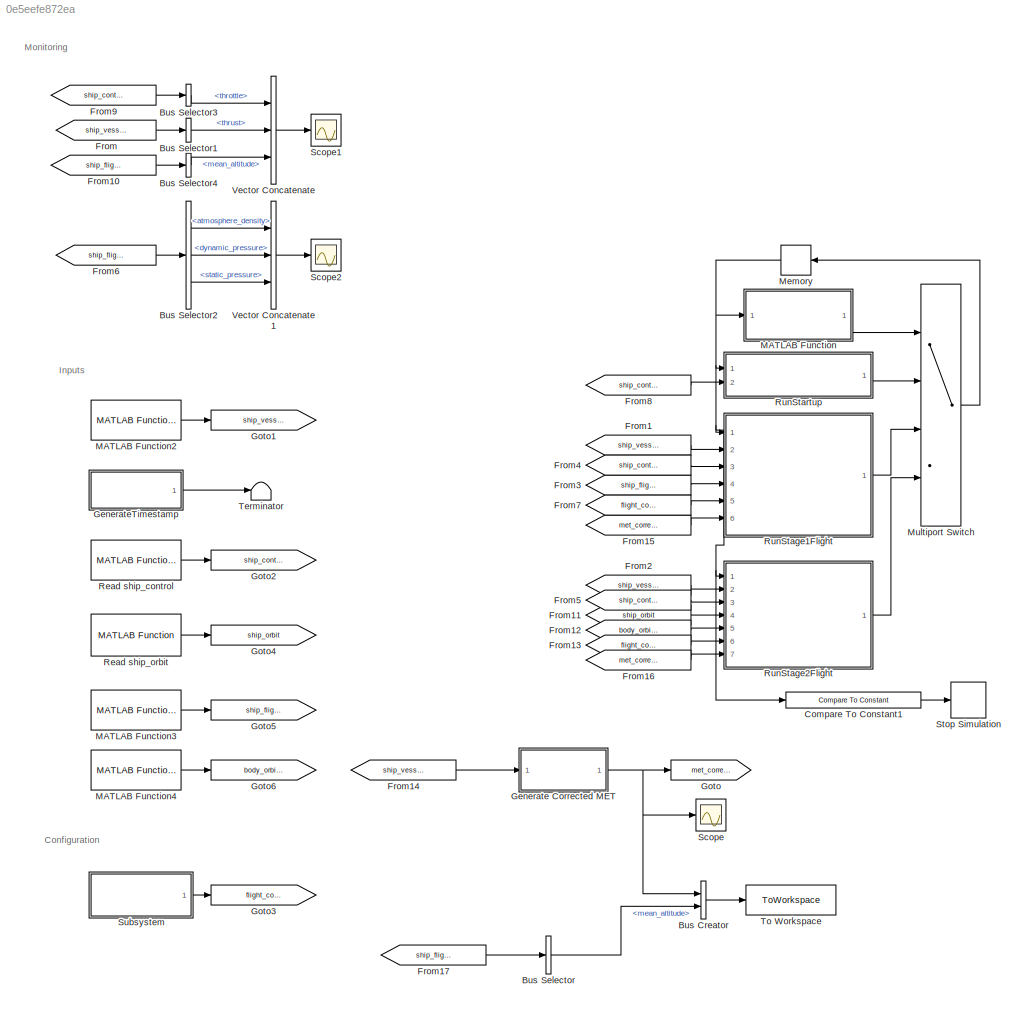
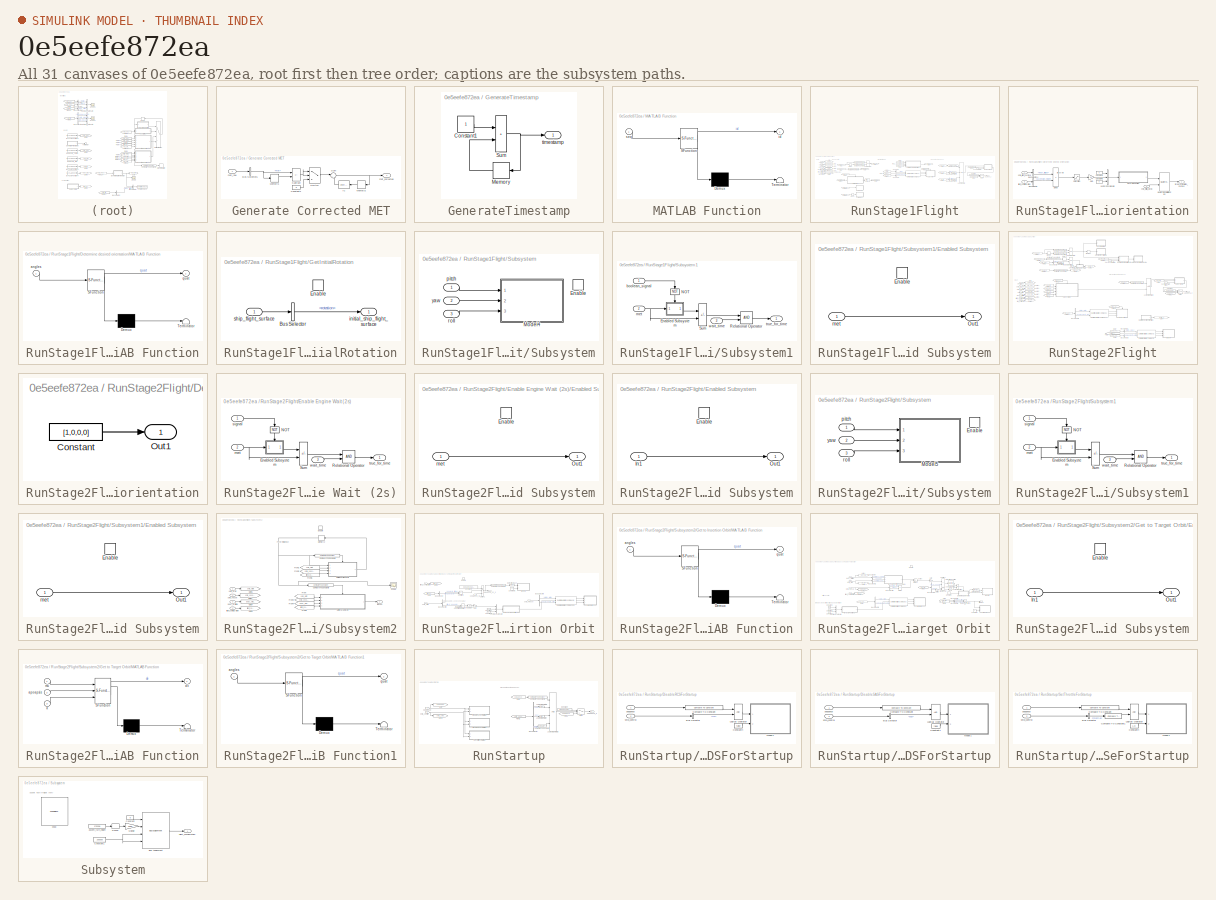
[diagram: thumbnail index - all 31 canvases of the model, root first then tree order]
MODEL slx_0e5eefe872ea
KIND model
CONFIG AbsTol = auto
CONFIG EnableMultiTasking = off
CONFIG FixedStep = 1/TPS
CONFIG MaxStep = auto
CONFIG MinStep = auto
CONFIG RelTol = 1e-3
CONFIG SampleTimeConstraint = Unconstrained
CONFIG SolverName = FixedStepDiscrete
CONFIG StartTime = 0.0
CONFIG StopTime = 10.0
WORKSPACE source: mxarray member
WORKSPACE socvcb: containers.Map (value not decoded)
BLOCK [BusCreator] Bus Creator
  DisplayOption = bar
  InheritFromInputs = on
  Inputs = 2
  Ports = [2, 1]
BLOCK [BusSelector] Bus Selector
  OutputSignals = mean_altitude
  Ports = [1, 1]
BLOCK [BusSelector] Bus Selector1
  OutputSignals = thrust
  Ports = [1, 1]
BLOCK [BusSelector] Bus Selector2
  OutputSignals = atmosphere_density,dynamic_pressure,static_pressure
  Ports = [1, 3]
BLOCK [BusSelector] Bus Selector3
  OutputSignals = throttle
  Ports = [1, 1]
BLOCK [BusSelector] Bus Selector4
  OutputSignals = mean_altitude
  Ports = [1, 1]
BLOCK [Reference] Compare To Constant1  REF=simulink/Logic and Bit
Operations/Compare
To Constant
  Ports = [1, 1]
  SourceBlock = simulink/Logic and Bit\nOperations/Compare\nTo Constant
  SourceProductBaseCode = SL
  SourceType = Compare To Constant
BLOCK [From] From
  GotoTag = ship_vessel
BLOCK [From] From1
  GotoTag = ship_vessel
BLOCK [From] From10
  GotoTag = ship_flight_surface
BLOCK [From] From11
  GotoTag = ship_orbit
BLOCK [From] From12
  GotoTag = body_orbiting
BLOCK [From] From13
  GotoTag = flight_configuration
BLOCK [From] From14
  GotoTag = ship_vessel
BLOCK [From] From15
  GotoTag = met_corrected
BLOCK [From] From16
  GotoTag = met_corrected
BLOCK [From] From17
  GotoTag = ship_flight_surface
BLOCK [From] From2
  GotoTag = ship_vessel
BLOCK [From] From3
  GotoTag = ship_flight_surface
BLOCK [From] From4
  GotoTag = ship_control
BLOCK [From] From5
  GotoTag = ship_control
BLOCK [From] From6
  GotoTag = ship_flight_surface
BLOCK [From] From7
  GotoTag = flight_configuration
BLOCK [From] From8
  GotoTag = ship_control
BLOCK [From] From9
  GotoTag = ship_control
BLOCK [SubSystem] Generate Corrected MET
  Ports = [1, 1]
  RequestExecContextInheritance = off
BLOCK [BusSelector] Generate Corrected MET/Bus Selector5
  OutputSignals = met
  Ports = [1, 1]
BLOCK [Constant] Generate Corrected MET/Constant1
  Value = 0
BLOCK [InitialCondition] Generate Corrected MET/IC
  NameLocation = top
  Value = 0
BLOCK [Memory] Generate Corrected MET/Memory1
BLOCK [Memory] Generate Corrected MET/Memory2
  NameLocation = top
BLOCK [Sum] Generate Corrected MET/Subtract
  IconShape = rectangular
  Inputs = +-
  Ports = [2, 1]
BLOCK [Sum] Generate Corrected MET/Sum
  Inputs = |++
  Ports = [2, 1]
BLOCK [Switch] Generate Corrected MET/Switch
  Criteria = u2 > Threshold
  InputSameDT = off
  SaturateOnIntegerOverflow = off
BLOCK [Outport] Generate Corrected MET/met_corrected
BLOCK [Inport] Generate Corrected MET/met_raw
BLOCK [SubSystem] GenerateTimestamp
  Ports = [0, 1]
  RequestExecContextInheritance = off
BLOCK [Constant] GenerateTimestamp/Constant1
BLOCK [Memory] GenerateTimestamp/Memory
  NameLocation = top
BLOCK [Sum] GenerateTimestamp/Sum
  IconShape = rectangular
  Ports = [2, 1]
BLOCK [Outport] GenerateTimestamp/timestamp
BLOCK [Goto] Goto
  GotoTag = met_corrected
BLOCK [Goto] Goto1
  GotoTag = ship_vessel
BLOCK [Goto] Goto2
  GotoTag = ship_control
BLOCK [Goto] Goto3
  GotoTag = flight_configuration
BLOCK [Goto] Goto4
  GotoTag = ship_orbit
BLOCK [Goto] Goto5
  GotoTag = ship_flight_surface
BLOCK [Goto] Goto6
  GotoTag = body_orbiting
BLOCK [SubSystem] MATLAB Function
  ErrorFcn = Stateflow.Translate.translate
  PermitHierarchicalResolution = ExplicitOnly
  Ports = [1, 1]
  RequestExecContextInheritance = off
  SFBlockType = MATLAB Function
  TreatAsAtomicUnit = on
BLOCK [Demux] MATLAB Function/ Demux 
  Outputs = 1
  Ports = [1, 1]
BLOCK [S-Function] MATLAB Function/ SFunction 
  EnableBusSupport = on
  FunctionName = sf_sfun
  PortCounts = [1 2]
  Ports = [1, 2]
  SFcnIsStateOwnerBlock = off
  SFunctionDeploymentMode = off
  Tag = Stateflow S-Function 2
BLOCK [Terminator] MATLAB Function/ Terminator 
BLOCK [Outport] MATLAB Function/id
BLOCK [Inport] MATLAB Function/seq
BLOCK [Reference] MATLAB Function2  REF=readers/MATLAB Function2  (lib defined in slx_15a7cccf68af)
  Ports = [0, 1]
  SourceBlock = readers/MATLAB Function2
  SourceType = SubSystem
BLOCK [Reference] MATLAB Function3  REF=readers/MATLAB Function3  (lib defined in slx_15a7cccf68af)
  Ports = [0, 1]
  SourceBlock = readers/MATLAB Function3
  SourceType = SubSystem
BLOCK [Reference] MATLAB Function4  REF=readers/MATLAB Function4  (lib defined in slx_15a7cccf68af)
  Ports = [0, 1]
  SourceBlock = readers/MATLAB Function4
  SourceType = SubSystem
BLOCK [Memory] Memory
  InitialCondition = Sequence.STARTUP
  NameLocation = top
BLOCK [MultiPortSwitch] Multiport Switch
  InputSameDT = off
  Ports = [4, 1]
  SaturateOnIntegerOverflow = off
BLOCK [Reference] Read ship_control  REF=readers/MATLAB Function1  (lib defined in slx_15a7cccf68af)
  Ports = [0, 1]
  SourceBlock = readers/MATLAB Function1
  SourceType = SubSystem
BLOCK [Reference] Read ship_orbit  REF=readers/MATLAB Function  (lib defined in slx_15a7cccf68af)
  Ports = [0, 1]
  SourceBlock = readers/MATLAB Function
  SourceType = SubSystem
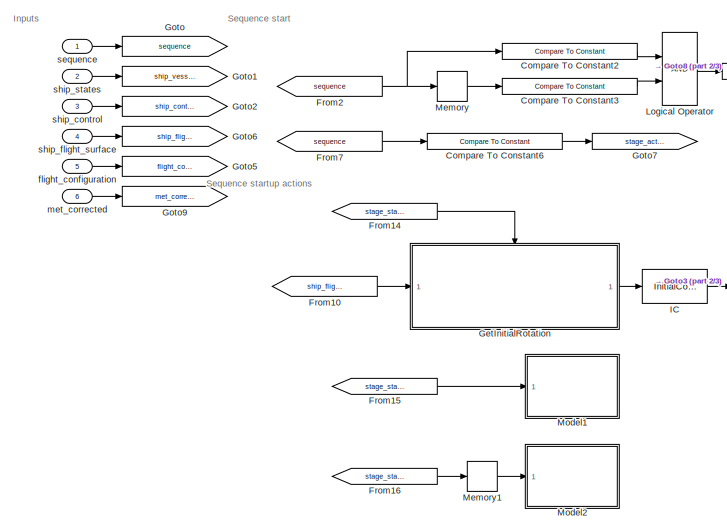
[diagram: RunStage1Flight - part 1/3, left side, full height]
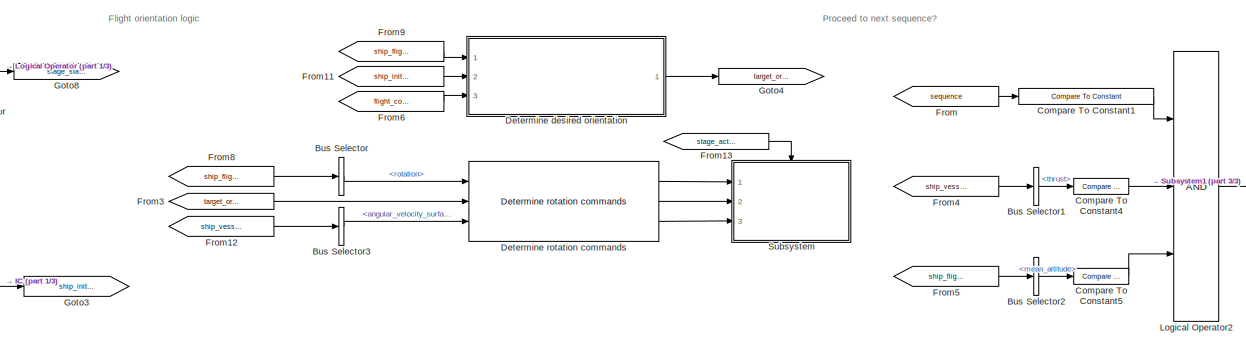
[diagram: RunStage1Flight - part 2/3, central region]
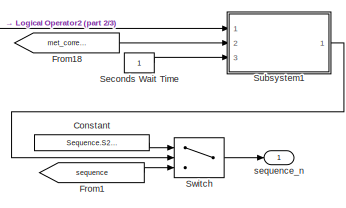
[diagram: RunStage1Flight - part 3/3, middle right region]
BLOCK [SubSystem] RunStage1Flight
  Ports = [6, 1]
  RequestExecContextInheritance = off
BLOCK [BusSelector] RunStage1Flight/Bus Selector
  OutputSignals = rotation
  Ports = [1, 1]
BLOCK [BusSelector] RunStage1Flight/Bus Selector1
  OutputSignals = thrust
  Ports = [1, 1]
BLOCK [BusSelector] RunStage1Flight/Bus Selector2
  OutputSignals = mean_altitude
  Ports = [1, 1]
BLOCK [BusSelector] RunStage1Flight/Bus Selector3
  OutputSignals = angular_velocity_surface
  Ports = [1, 1]
BLOCK [Reference] RunStage1Flight/Compare To Constant1  REF=simulink/Logic and Bit
Operations/Compare
To Constant
  Ports = [1, 1]
  SourceBlock = simulink/Logic and Bit\nOperations/Compare\nTo Constant
  SourceProductBaseCode = SL
  SourceType = Compare To Constant
BLOCK [Reference] RunStage1Flight/Compare To Constant2  REF=simulink/Logic and Bit
Operations/Compare
To Constant
  Ports = [1, 1]
  SourceBlock = simulink/Logic and Bit\nOperations/Compare\nTo Constant
  SourceProductBaseCode = SL
  SourceType = Compare To Constant
BLOCK [Reference] RunStage1Flight/Compare To Constant3  REF=simulink/Logic and Bit
Operations/Compare
To Constant
  Ports = [1, 1]
  SourceBlock = simulink/Logic and Bit\nOperations/Compare\nTo Constant
  SourceProductBaseCode = SL
  SourceType = Compare To Constant
BLOCK [Reference] RunStage1Flight/Compare To Constant4  REF=simulink/Logic and Bit
Operations/Compare
To Constant
  Ports = [1, 1]
  SourceBlock = simulink/Logic and Bit\nOperations/Compare\nTo Constant
  SourceProductBaseCode = SL
  SourceType = Compare To Constant
BLOCK [Reference] RunStage1Flight/Compare To Constant5  REF=simulink/Logic and Bit
Operations/Compare
To Constant
  Ports = [1, 1]
  SourceBlock = simulink/Logic and Bit\nOperations/Compare\nTo Constant
  SourceProductBaseCode = SL
  SourceType = Compare To Constant
BLOCK [Reference] RunStage1Flight/Compare To Constant6  REF=simulink/Logic and Bit
Operations/Compare
To Constant
  Ports = [1, 1]
  SourceBlock = simulink/Logic and Bit\nOperations/Compare\nTo Constant
  SourceProductBaseCode = SL
  SourceType = Compare To Constant
BLOCK [Constant] RunStage1Flight/Constant
  Value = Sequence.S2FLIGHT
BLOCK [SubSystem] RunStage1Flight/Determine desired orientation
  Ports = [3, 1]
  RequestExecContextInheritance = off
BLOCK [BusSelector] RunStage1Flight/Determine desired orientation/Bus Selector
  OutputSignals = ascent_turn_height
  Ports = [1, 1]
BLOCK [BusSelector] RunStage1Flight/Determine desired orientation/Bus Selector4
  OutputSignals = mean_altitude
  Ports = [1, 1]
BLOCK [Constant] RunStage1Flight/Determine desired orientation/Constant4
  Value = 0
BLOCK [Constant] RunStage1Flight/Determine desired orientation/Constant5
  Value = 0
BLOCK [Product] RunStage1Flight/Determine desired orientation/Divide
  Inputs = */
  Ports = [2, 1]
BLOCK [Gain] RunStage1Flight/Determine desired orientation/Gain
  Gain = 90
BLOCK [SubSystem] RunStage1Flight/Determine desired orientation/MATLAB Function
  ErrorFcn = Stateflow.Translate.translate
  PermitHierarchicalResolution = ExplicitOnly
  Ports = [1, 1]
  RequestExecContextInheritance = off
  SFBlockType = MATLAB Function
  TreatAsAtomicUnit = on
BLOCK [Demux] RunStage1Flight/Determine desired orientation/MATLAB Function/ Demux 
  Outputs = 1
  Ports = [1, 1]
BLOCK [S-Function] RunStage1Flight/Determine desired orientation/MATLAB Function/ SFunction 
  EnableBusSupport = on
  FunctionName = sf_sfun
  PortCounts = [1 2]
  Ports = [1, 2]
  SFcnIsStateOwnerBlock = off
  SFunctionDeploymentMode = off
  Tag = Stateflow S-Function 6
BLOCK [Terminator] RunStage1Flight/Determine desired orientation/MATLAB Function/ Terminator 
BLOCK [Inport] RunStage1Flight/Determine desired orientation/MATLAB Function/angles
BLOCK [Outport] RunStage1Flight/Determine desired orientation/MATLAB Function/quat
BLOCK [Reference] RunStage1Flight/Determine desired orientation/Quaternion Multiplication  REF=aerolibutil/Quaternion
Multiplication
  Ports = [2, 1]
  SourceBlock = aerolibutil/Quaternion\nMultiplication
  SourceProductBaseCode = AE
  SourceType = Quaternion Multiplication
BLOCK [Saturate] RunStage1Flight/Determine desired orientation/Saturation
  LowerLimit = 0
  UpperLimit = 1
BLOCK [Concatenate] RunStage1Flight/Determine desired orientation/Vector Concatenate
  NumInputs = 3
  Ports = [3, 1]
BLOCK [Inport] RunStage1Flight/Determine desired orientation/flight_configuration
  OutDataTypeStr = Bus: FlightConfig
  Port = 3
BLOCK [Inport] RunStage1Flight/Determine desired orientation/ship_flight_surface
  OutDataTypeStr = Bus: ShipFlight
BLOCK [Inport] RunStage1Flight/Determine desired orientation/ship_initial_world
  Port = 2
BLOCK [Outport] RunStage1Flight/Determine desired orientation/target_orientation_surface
BLOCK [Reference] RunStage1Flight/Determine rotation commands  REF=determine_rotation_commands/Determine rotation commands  (lib defined in slx_df92a99b83ff)
  Ports = [3, 3]
  SourceBlock = determine_rotation_commands/Determine rotation commands
BLOCK [From] RunStage1Flight/From
  GotoTag = sequence
BLOCK [From] RunStage1Flight/From1
  GotoTag = sequence
BLOCK [From] RunStage1Flight/From10
  GotoTag = ship_flight_surface
BLOCK [From] RunStage1Flight/From11
  GotoTag = ship_initial_world
BLOCK [From] RunStage1Flight/From12
  GotoTag = ship_vessel
BLOCK [From] RunStage1Flight/From13
  GotoTag = stage_active
BLOCK [From] RunStage1Flight/From14
  GotoTag = stage_start_trigger
BLOCK [From] RunStage1Flight/From15
  GotoTag = stage_start_trigger
BLOCK [From] RunStage1Flight/From16
  GotoTag = stage_start_trigger
BLOCK [From] RunStage1Flight/From18
  GotoTag = met_corrected
BLOCK [From] RunStage1Flight/From2
  GotoTag = sequence
BLOCK [From] RunStage1Flight/From3
  GotoTag = target_orientation
BLOCK [From] RunStage1Flight/From4
  GotoTag = ship_vessel
BLOCK [From] RunStage1Flight/From5
  GotoTag = ship_flight_surface
BLOCK [From] RunStage1Flight/From6
  GotoTag = flight_configuration
BLOCK [From] RunStage1Flight/From7
  GotoTag = sequence
BLOCK [From] RunStage1Flight/From8
  GotoTag = ship_flight_surface
BLOCK [From] RunStage1Flight/From9
  GotoTag = ship_flight_surface
BLOCK [SubSystem] RunStage1Flight/GetInitialRotation
  Ports = [1, 1, 1]
  RequestExecContextInheritance = off
BLOCK [BusSelector] RunStage1Flight/GetInitialRotation/Bus Selector
  OutputSignals = rotation
  Ports = [1, 1]
BLOCK [EnablePort] RunStage1Flight/GetInitialRotation/Enable
  Ports = []
BLOCK [Outport] RunStage1Flight/GetInitialRotation/initial_ship_flight_surface
BLOCK [Inport] RunStage1Flight/GetInitialRotation/ship_flight_surface
  OutDataTypeStr = Bus: ShipFlight
BLOCK [Goto] RunStage1Flight/Goto
  GotoTag = sequence
BLOCK [Goto] RunStage1Flight/Goto1
  GotoTag = ship_vessel
BLOCK [Goto] RunStage1Flight/Goto2
  GotoTag = ship_control
BLOCK [Goto] RunStage1Flight/Goto3
  GotoTag = ship_initial_world
BLOCK [Goto] RunStage1Flight/Goto4
  GotoTag = target_orientation
BLOCK [Goto] RunStage1Flight/Goto5
  GotoTag = flight_configuration
BLOCK [Goto] RunStage1Flight/Goto6
  GotoTag = ship_flight_surface
BLOCK [Goto] RunStage1Flight/Goto7
  GotoTag = stage_active
BLOCK [Goto] RunStage1Flight/Goto8
  GotoTag = stage_start_trigger
BLOCK [Goto] RunStage1Flight/Goto9
  GotoTag = met_corrected
BLOCK [InitialCondition] RunStage1Flight/IC
  Value = [1,0,0,0]
BLOCK [Logic] RunStage1Flight/Logical Operator
  AllPortsSameDT = off
  OutDataTypeStr = boolean
  Ports = [2, 1]
BLOCK [Logic] RunStage1Flight/Logical Operator2
  AllPortsSameDT = off
  Inputs = 3
  OutDataTypeStr = boolean
  Ports = [3, 1]
BLOCK [Memory] RunStage1Flight/Memory
  InitialCondition = Sequence.STARTUP
BLOCK [Memory] RunStage1Flight/Memory1
  InitialCondition = false
BLOCK [ModelReference] RunStage1Flight/Model1
  ModelNameDialog = stage.slx
  ModelReferenceVersion = 1.23
  Ports = [1]
BLOCK [ModelReference] RunStage1Flight/Model2
  ModelNameDialog = stage.slx
  ModelReferenceVersion = 1.23
  Ports = [1]
BLOCK [Constant] RunStage1Flight/Seconds Wait Time
BLOCK [SubSystem] RunStage1Flight/Subsystem
  Ports = [3, 0, 1]
  RequestExecContextInheritance = off
BLOCK [EnablePort] RunStage1Flight/Subsystem/Enable
  Ports = []
BLOCK [ModelReference] RunStage1Flight/Subsystem/Model4
  ModelNameDialog = write_control.slx
  ModelReferenceVersion = 1.104
  Ports = [3]
BLOCK [Inport] RunStage1Flight/Subsystem/pitch
BLOCK [Inport] RunStage1Flight/Subsystem/roll
  Port = 3
BLOCK [Inport] RunStage1Flight/Subsystem/yaw
  Port = 2
BLOCK [SubSystem] RunStage1Flight/Subsystem1
  Ports = [3, 1]
  RequestExecContextInheritance = off
BLOCK [SubSystem] RunStage1Flight/Subsystem1/Enabled Subsystem
  Ports = [1, 1, 1]
  RequestExecContextInheritance = off
  TreatAsAtomicUnit = on
BLOCK [EnablePort] RunStage1Flight/Subsystem1/Enabled Subsystem/Enable
  Ports = []
BLOCK [Outport] RunStage1Flight/Subsystem1/Enabled Subsystem/Out1
BLOCK [Inport] RunStage1Flight/Subsystem1/Enabled Subsystem/met
BLOCK [Logic] RunStage1Flight/Subsystem1/NOT
  AllPortsSameDT = off
  NameLocation = left
  Operator = NOT
  OutDataTypeStr = boolean
  Ports = [1, 1]
BLOCK [RelationalOperator] RunStage1Flight/Subsystem1/Relational Operator
  InputSameDT = off
  OutDataTypeStr = boolean
  Ports = [2, 1]
  RndMeth = Simplest
BLOCK [Sum] RunStage1Flight/Subsystem1/Sum
  IconShape = rectangular
  Inputs = -+
  Ports = [2, 1]
BLOCK [Inport] RunStage1Flight/Subsystem1/boolean_signal
  OutDataTypeStr = boolean
BLOCK [Inport] RunStage1Flight/Subsystem1/met
  OutDataTypeStr = double
  Port = 2
BLOCK [Outport] RunStage1Flight/Subsystem1/true_for_time
BLOCK [Inport] RunStage1Flight/Subsystem1/wait_time
  OutDataTypeStr = double
  Port = 3
BLOCK [Switch] RunStage1Flight/Switch
  Criteria = u2 > Threshold
  InputSameDT = off
  SaturateOnIntegerOverflow = off
BLOCK [Inport] RunStage1Flight/flight_configuration
  OutDataTypeStr = Bus: FlightConfig
  Port = 5
BLOCK [Inport] RunStage1Flight/met_corrected
  Port = 6
BLOCK [Inport] RunStage1Flight/sequence
  OutDataTypeStr = Enum: Sequence
BLOCK [Outport] RunStage1Flight/sequence_n
  OutDataTypeStr = Enum: Sequence
BLOCK [Inport] RunStage1Flight/ship_control
  OutDataTypeStr = Bus: ShipControl
  Port = 3
BLOCK [Inport] RunStage1Flight/ship_flight_surface
  OutDataTypeStr = Bus: ShipFlight
  Port = 4
BLOCK [Inport] RunStage1Flight/ship_states
  OutDataTypeStr = Bus: ShipVessel
  Port = 2
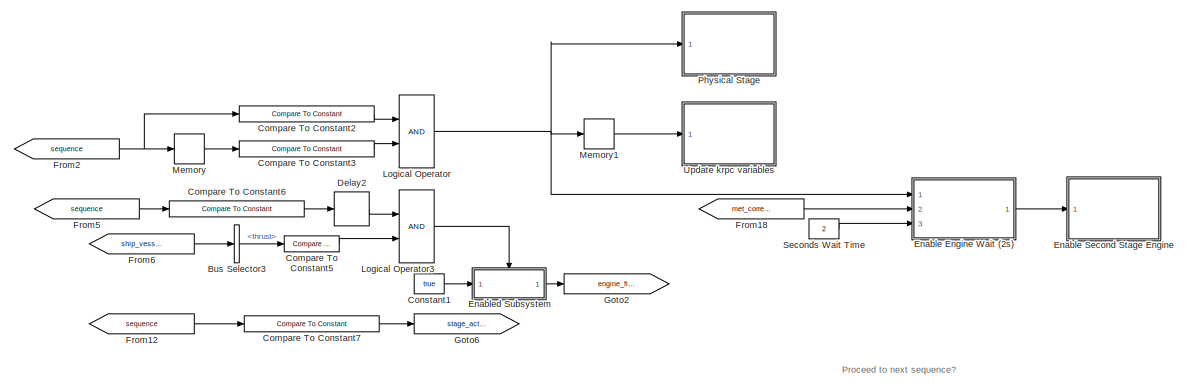
[diagram: RunStage2Flight - part 1/3, top center region]
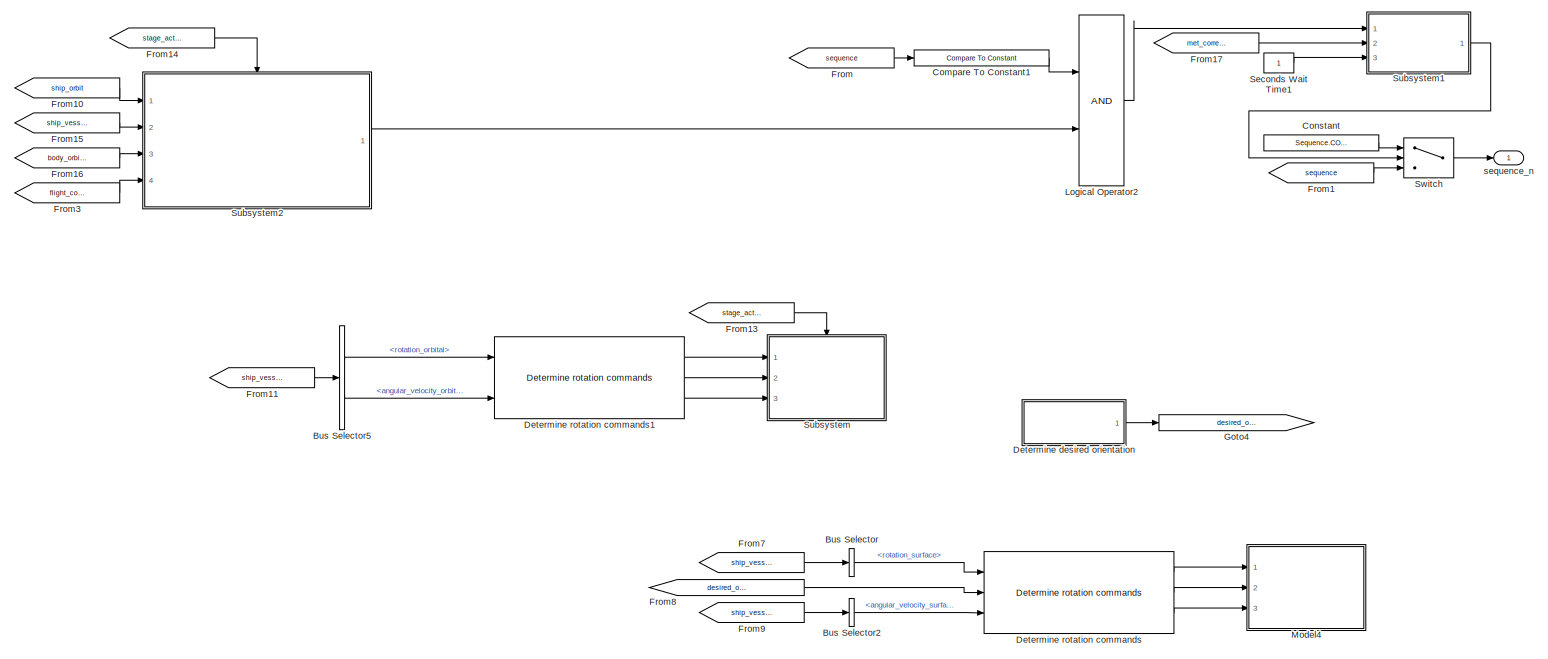
[diagram: RunStage2Flight - part 2/3, full width, bottom band]
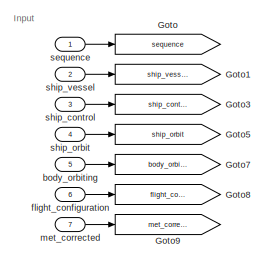
[diagram: RunStage2Flight - part 3/3, middle left region]
BLOCK [SubSystem] RunStage2Flight
  Ports = [7, 1]
  RequestExecContextInheritance = off
BLOCK [BusSelector] RunStage2Flight/Bus Selector
  Commented = on
  OutputSignals = rotation_surface
  Ports = [1, 1]
BLOCK [BusSelector] RunStage2Flight/Bus Selector2
  Commented = on
  OutputSignals = angular_velocity_surface
  Ports = [1, 1]
BLOCK [BusSelector] RunStage2Flight/Bus Selector3
  OutputSignals = thrust
  Ports = [1, 1]
BLOCK [BusSelector] RunStage2Flight/Bus Selector5
  Commented = on
  OutputSignals = rotation_orbital,angular_velocity_orbital
  Ports = [1, 2]
BLOCK [Reference] RunStage2Flight/Compare To Constant1  REF=simulink/Logic and Bit
Operations/Compare
To Constant
  Ports = [1, 1]
  SourceBlock = simulink/Logic and Bit\nOperations/Compare\nTo Constant
  SourceProductBaseCode = SL
  SourceType = Compare To Constant
BLOCK [Reference] RunStage2Flight/Compare To Constant2  REF=simulink/Logic and Bit
Operations/Compare
To Constant
  Ports = [1, 1]
  SourceBlock = simulink/Logic and Bit\nOperations/Compare\nTo Constant
  SourceProductBaseCode = SL
  SourceType = Compare To Constant
BLOCK [Reference] RunStage2Flight/Compare To Constant3  REF=simulink/Logic and Bit
Operations/Compare
To Constant
  Ports = [1, 1]
  SourceBlock = simulink/Logic and Bit\nOperations/Compare\nTo Constant
  SourceProductBaseCode = SL
  SourceType = Compare To Constant
BLOCK [Reference] RunStage2Flight/Compare To Constant5  REF=simulink/Logic and Bit
Operations/Compare
To Constant
  Ports = [1, 1]
  SourceBlock = simulink/Logic and Bit\nOperations/Compare\nTo Constant
  SourceProductBaseCode = SL
  SourceType = Compare To Constant
BLOCK [Reference] RunStage2Flight/Compare To Constant6  REF=simulink/Logic and Bit
Operations/Compare
To Constant
  Ports = [1, 1]
  SourceBlock = simulink/Logic and Bit\nOperations/Compare\nTo Constant
  SourceProductBaseCode = SL
  SourceType = Compare To Constant
BLOCK [Reference] RunStage2Flight/Compare To Constant7  REF=simulink/Logic and Bit
Operations/Compare
To Constant
  Ports = [1, 1]
  SourceBlock = simulink/Logic and Bit\nOperations/Compare\nTo Constant
  SourceProductBaseCode = SL
  SourceType = Compare To Constant
BLOCK [Constant] RunStage2Flight/Constant
  Value = Sequence.COMPLETE
BLOCK [Constant] RunStage2Flight/Constant1
  Value = true
BLOCK [Delay] RunStage2Flight/Delay2
  DelayLength = TPS/10
  InputPortMap = u0
  Ports = [1, 1]
BLOCK [SubSystem] RunStage2Flight/Determine desired orientation
  Commented = on
  Ports = [0, 1]
  RequestExecContextInheritance = off
BLOCK [Constant] RunStage2Flight/Determine desired orientation/Constant
  Value = [1,0,0,0]
BLOCK [Outport] RunStage2Flight/Determine desired orientation/Out1
BLOCK [Reference] RunStage2Flight/Determine rotation commands  REF=determine_rotation_commands/Determine rotation commands  (lib defined in slx_df92a99b83ff)
  Commented = on
  Ports = [3, 3]
  SourceBlock = determine_rotation_commands/Determine rotation commands
BLOCK [Reference] RunStage2Flight/Determine rotation commands1  REF=determine_rotation_commands/Determine rotation commands  (lib defined in slx_df92a99b83ff)
  Commented = on
  Ports = [3, 3]
  SourceBlock = determine_rotation_commands/Determine rotation commands
BLOCK [SubSystem] RunStage2Flight/Enable Engine Wait (2s)
  Ports = [3, 1]
  RequestExecContextInheritance = off
BLOCK [SubSystem] RunStage2Flight/Enable Engine Wait (2s)/Enabled Subsystem
  Ports = [1, 1, 1]
  RequestExecContextInheritance = off
  TreatAsAtomicUnit = on
BLOCK [EnablePort] RunStage2Flight/Enable Engine Wait (2s)/Enabled Subsystem/Enable
  Ports = []
BLOCK [Outport] RunStage2Flight/Enable Engine Wait (2s)/Enabled Subsystem/Out1
BLOCK [Inport] RunStage2Flight/Enable Engine Wait (2s)/Enabled Subsystem/met
BLOCK [Logic] RunStage2Flight/Enable Engine Wait (2s)/NOT
  AllPortsSameDT = off
  NameLocation = left
  Operator = NOT
  OutDataTypeStr = boolean
  Ports = [1, 1]
BLOCK [RelationalOperator] RunStage2Flight/Enable Engine Wait (2s)/Relational Operator
  InputSameDT = off
  OutDataTypeStr = boolean
  Ports = [2, 1]
  RndMeth = Simplest
BLOCK [Sum] RunStage2Flight/Enable Engine Wait (2s)/Sum
  IconShape = rectangular
  Inputs = -+
  Ports = [2, 1]
BLOCK [Inport] RunStage2Flight/Enable Engine Wait (2s)/met
  OutDataTypeStr = double
  Port = 2
BLOCK [Inport] RunStage2Flight/Enable Engine Wait (2s)/signal
  OutDataTypeStr = boolean
BLOCK [Outport] RunStage2Flight/Enable Engine Wait (2s)/true_for_time
BLOCK [Inport] RunStage2Flight/Enable Engine Wait (2s)/wait_time
  OutDataTypeStr = double
  Port = 3
BLOCK [ModelReference] RunStage2Flight/Enable Second Stage Engine
  ModelNameDialog = stage.slx
  ModelReferenceVersion = 1.23
  Ports = [1]
BLOCK [SubSystem] RunStage2Flight/Enabled Subsystem
  Ports = [1, 1, 1]
  RequestExecContextInheritance = off
  TreatAsAtomicUnit = on
BLOCK [EnablePort] RunStage2Flight/Enabled Subsystem/Enable
  Ports = []
BLOCK [Inport] RunStage2Flight/Enabled Subsystem/In1
BLOCK [Outport] RunStage2Flight/Enabled Subsystem/Out1
BLOCK [From] RunStage2Flight/From
  GotoTag = sequence
BLOCK [From] RunStage2Flight/From1
  GotoTag = sequence
BLOCK [From] RunStage2Flight/From10
  GotoTag = ship_orbit
BLOCK [From] RunStage2Flight/From11
  Commented = on
  GotoTag = ship_vessel
BLOCK [From] RunStage2Flight/From12
  GotoTag = sequence
BLOCK [From] RunStage2Flight/From13
  Commented = on
  GotoTag = stage_active
BLOCK [From] RunStage2Flight/From14
  GotoTag = stage_active
BLOCK [From] RunStage2Flight/From15
  GotoTag = ship_vessel
BLOCK [From] RunStage2Flight/From16
  GotoTag = body_orbiting
BLOCK [From] RunStage2Flight/From17
  GotoTag = met_corrected
BLOCK [From] RunStage2Flight/From18
  GotoTag = met_corrected
BLOCK [From] RunStage2Flight/From2
  GotoTag = sequence
BLOCK [From] RunStage2Flight/From3
  GotoTag = flight_configuration
BLOCK [From] RunStage2Flight/From5
  GotoTag = sequence
BLOCK [From] RunStage2Flight/From6
  GotoTag = ship_vessel
BLOCK [From] RunStage2Flight/From7
  Commented = on
  GotoTag = ship_vessel
BLOCK [From] RunStage2Flight/From8
  Commented = on
  GotoTag = desired_orientation_surface
BLOCK [From] RunStage2Flight/From9
  Commented = on
  GotoTag = ship_vessel
BLOCK [Goto] RunStage2Flight/Goto
  GotoTag = sequence
BLOCK [Goto] RunStage2Flight/Goto1
  GotoTag = ship_vessel
BLOCK [Goto] RunStage2Flight/Goto2
  GotoTag = engine_fired
BLOCK [Goto] RunStage2Flight/Goto3
  GotoTag = ship_control
BLOCK [Goto] RunStage2Flight/Goto4
  Commented = on
  GotoTag = desired_orientation_surface
BLOCK [Goto] RunStage2Flight/Goto5
  GotoTag = ship_orbit
BLOCK [Goto] RunStage2Flight/Goto6
  GotoTag = stage_active
BLOCK [Goto] RunStage2Flight/Goto7
  GotoTag = body_orbiting
BLOCK [Goto] RunStage2Flight/Goto8
  GotoTag = flight_configuration
BLOCK [Goto] RunStage2Flight/Goto9
  GotoTag = met_corrected
BLOCK [Logic] RunStage2Flight/Logical Operator
  AllPortsSameDT = off
  OutDataTypeStr = boolean
  Ports = [2, 1]
BLOCK [Logic] RunStage2Flight/Logical Operator2
  AllPortsSameDT = off
  OutDataTypeStr = boolean
  Ports = [2, 1]
BLOCK [Logic] RunStage2Flight/Logical Operator3
  AllPortsSameDT = off
  OutDataTypeStr = boolean
  Ports = [2, 1]
BLOCK [Memory] RunStage2Flight/Memory
  InitialCondition = Sequence.STARTUP
BLOCK [Memory] RunStage2Flight/Memory1
  InitialCondition = false
BLOCK [ModelReference] RunStage2Flight/Model4
  Commented = on
  ModelNameDialog = write_control.slx
  ModelReferenceVersion = 1.104
  Ports = [3]
BLOCK [ModelReference] RunStage2Flight/Physical Stage
  ModelNameDialog = stage.slx
  ModelReferenceVersion = 1.23
  Ports = [1]
BLOCK [Constant] RunStage2Flight/Seconds Wait Time
  Value = 2
BLOCK [Constant] RunStage2Flight/Seconds Wait Time1
BLOCK [SubSystem] RunStage2Flight/Subsystem
  Commented = on
  Ports = [3, 0, 1]
  RequestExecContextInheritance = off
BLOCK [EnablePort] RunStage2Flight/Subsystem/Enable
  Ports = []
BLOCK [ModelReference] RunStage2Flight/Subsystem/Model5
  ModelNameDialog = write_control.slx
  ModelReferenceVersion = 1.104
  Ports = [3]
BLOCK [Inport] RunStage2Flight/Subsystem/pitch
BLOCK [Inport] RunStage2Flight/Subsystem/roll
  Port = 3
BLOCK [Inport] RunStage2Flight/Subsystem/yaw
  Port = 2
BLOCK [SubSystem] RunStage2Flight/Subsystem1
  Ports = [3, 1]
  RequestExecContextInheritance = off
BLOCK [SubSystem] RunStage2Flight/Subsystem1/Enabled Subsystem
  Ports = [1, 1, 1]
  RequestExecContextInheritance = off
  TreatAsAtomicUnit = on
BLOCK [EnablePort] RunStage2Flight/Subsystem1/Enabled Subsystem/Enable
  Ports = []
BLOCK [Outport] RunStage2Flight/Subsystem1/Enabled Subsystem/Out1
BLOCK [Inport] RunStage2Flight/Subsystem1/Enabled Subsystem/met
BLOCK [Logic] RunStage2Flight/Subsystem1/NOT
  AllPortsSameDT = off
  NameLocation = left
  Operator = NOT
  OutDataTypeStr = boolean
  Ports = [1, 1]
BLOCK [RelationalOperator] RunStage2Flight/Subsystem1/Relational Operator
  InputSameDT = off
  OutDataTypeStr = boolean
  Ports = [2, 1]
  RndMeth = Simplest
BLOCK [Sum] RunStage2Flight/Subsystem1/Sum
  IconShape = rectangular
  Inputs = -+
  Ports = [2, 1]
BLOCK [Inport] RunStage2Flight/Subsystem1/met
  OutDataTypeStr = double
  Port = 2
BLOCK [Inport] RunStage2Flight/Subsystem1/signal
  OutDataTypeStr = boolean
BLOCK [Outport] RunStage2Flight/Subsystem1/true_for_time
BLOCK [Inport] RunStage2Flight/Subsystem1/wait_time
  OutDataTypeStr = double
  Port = 3
BLOCK [SubSystem] RunStage2Flight/Subsystem2
  Ports = [4, 1, 1]
  RequestExecContextInheritance = off
BLOCK [Reference] RunStage2Flight/Subsystem2/Compare To Constant8  REF=simulink/Logic and Bit
Operations/Compare
To Constant
  Ports = [1, 1]
  SourceBlock = simulink/Logic and Bit\nOperations/Compare\nTo Constant
  SourceProductBaseCode = SL
  SourceType = Compare To Constant
BLOCK [Reference] RunStage2Flight/Subsystem2/Compare To Constant9  REF=simulink/Logic and Bit
Operations/Compare
To Constant
  Ports = [1, 1]
  SourceBlock = simulink/Logic and Bit\nOperations/Compare\nTo Constant
  SourceProductBaseCode = SL
  SourceType = Compare To Constant
BLOCK [EnablePort] RunStage2Flight/Subsystem2/Enable
  Ports = []
BLOCK [From] RunStage2Flight/Subsystem2/From
  GotoTag = ship_orbit
BLOCK [From] RunStage2Flight/Subsystem2/From1
  GotoTag = ship_orbit
BLOCK [From] RunStage2Flight/Subsystem2/From2
  GotoTag = ship_vessel
BLOCK [From] RunStage2Flight/Subsystem2/From3
  GotoTag = ship_vessel
BLOCK [From] RunStage2Flight/Subsystem2/From4
  GotoTag = body_orbiting
BLOCK [From] RunStage2Flight/Subsystem2/From5
  GotoTag = flight_configuration
BLOCK [From] RunStage2Flight/Subsystem2/From6
  GotoTag = flight_configuration
BLOCK [SubSystem] RunStage2Flight/Subsystem2/Get to Insertion Orbit
  Ports = [4, 1, 1]
  RequestExecContextInheritance = off
BLOCK [BusSelector] RunStage2Flight/Subsystem2/Get to Insertion Orbit/Bus Selector
  OutputSignals = target_apoapsis
  Ports = [1, 1]
BLOCK [BusSelector] RunStage2Flight/Subsystem2/Get to Insertion Orbit/Bus Selector4
  OutputSignals = apoapsis_altitude,time_to_apoapsis
  Ports = [1, 2]
BLOCK [BusSelector] RunStage2Flight/Subsystem2/Get to Insertion Orbit/Bus Selector5
  OutputSignals = rotation_orbital,angular_velocity_orbital
  Ports = [1, 2]
BLOCK [Reference] RunStage2Flight/Subsystem2/Get to Insertion Orbit/Compare To Constant9  REF=simulink/Logic and Bit
Operations/Compare
To Constant
  Ports = [1, 1]
  SourceBlock = simulink/Logic and Bit\nOperations/Compare\nTo Constant
  SourceProductBaseCode = SL
  SourceType = Compare To Constant
BLOCK [Constant] RunStage2Flight/Subsystem2/Get to Insertion Orbit/Constant
  Value = 0
BLOCK [Constant] RunStage2Flight/Subsystem2/Get to Insertion Orbit/Constant1
  Value = 0
BLOCK [Constant] RunStage2Flight/Subsystem2/Get to Insertion Orbit/Constant2
  Value = 10
BLOCK [Constant] RunStage2Flight/Subsystem2/Get to Insertion Orbit/Constant3
  Value = 0
BLOCK [Constant] RunStage2Flight/Subsystem2/Get to Insertion Orbit/Constant4
  Value = SequenceS2.CIRCULARIZATION
BLOCK [Reference] RunStage2Flight/Subsystem2/Get to Insertion Orbit/Detect Increase  REF=simulink/Logic and Bit
Operations/Detect
Increase
  Ports = [1, 1]
  SourceBlock = simulink/Logic and Bit\nOperations/Detect\nIncrease
  SourceProductBaseCode = SL
  SourceType = Detect Increase
BLOCK [Reference] RunStage2Flight/Subsystem2/Get to Insertion Orbit/Determine rotation commands1  REF=determine_rotation_commands/Determine rotation commands  (lib defined in slx_df92a99b83ff)
  Ports = [3, 3]
  SourceBlock = determine_rotation_commands/Determine rotation commands
BLOCK [EnablePort] RunStage2Flight/Subsystem2/Get to Insertion Orbit/Enable
  Ports = []
BLOCK [From] RunStage2Flight/Subsystem2/Get to Insertion Orbit/From
  GotoTag = flight_configuration
BLOCK [Gain] RunStage2Flight/Subsystem2/Get to Insertion Orbit/Gain
BLOCK [Goto] RunStage2Flight/Subsystem2/Get to Insertion Orbit/Goto5
  GotoTag = flight_configuration
BLOCK [SubSystem] RunStage2Flight/Subsystem2/Get to Insertion Orbit/MATLAB Function
  ErrorFcn = Stateflow.Translate.translate
  PermitHierarchicalResolution = ExplicitOnly
  Ports = [1, 1]
  RequestExecContextInheritance = off
  SFBlockType = MATLAB Function
  TreatAsAtomicUnit = on
BLOCK [Demux] RunStage2Flight/Subsystem2/Get to Insertion Orbit/MATLAB Function/ Demux 
  Outputs = 1
  Ports = [1, 1]
BLOCK [S-Function] RunStage2Flight/Subsystem2/Get to Insertion Orbit/MATLAB Function/ SFunction 
  EnableBusSupport = on
  FunctionName = sf_sfun
  PortCounts = [1 2]
  Ports = [1, 2]
  SFcnIsStateOwnerBlock = off
  SFunctionDeploymentMode = off
  Tag = Stateflow S-Function 1
BLOCK [Terminator] RunStage2Flight/Subsystem2/Get to Insertion Orbit/MATLAB Function/ Terminator 
BLOCK [Inport] RunStage2Flight/Subsystem2/Get to Insertion Orbit/MATLAB Function/angles
BLOCK [Outport] RunStage2Flight/Subsystem2/Get to Insertion Orbit/MATLAB Function/quat
BLOCK [ModelReference] RunStage2Flight/Subsystem2/Get to Insertion Orbit/Model1
  ModelNameDialog = set_throttle.slx
  ModelReferenceVersion = 1.29
  Ports = [2]
BLOCK [ModelReference] RunStage2Flight/Subsystem2/Get to Insertion Orbit/Model5
  ModelNameDialog = write_control.slx
  ModelReferenceVersion = 1.104
  Ports = [3]
BLOCK [Saturate] RunStage2Flight/Subsystem2/Get to Insertion Orbit/Saturation
  LowerLimit = -30
  UpperLimit = 30
BLOCK [Sum] RunStage2Flight/Subsystem2/Get to Insertion Orbit/Subtract
  IconShape = rectangular
  Inputs = +-
  Ports = [2, 1]
BLOCK [Sum] RunStage2Flight/Subsystem2/Get to Insertion Orbit/Subtract1
  IconShape = rectangular
  Inputs = +-
  Ports = [2, 1]
BLOCK [Switch] RunStage2Flight/Subsystem2/Get to Insertion Orbit/Switch1
  Criteria = u2 > Threshold
  InputSameDT = off
  SaturateOnIntegerOverflow = off
BLOCK [Concatenate] RunStage2Flight/Subsystem2/Get to Insertion Orbit/Vector Concatenate
  NumInputs = 3
  Ports = [3, 1]
BLOCK [Inport] RunStage2Flight/Subsystem2/Get to Insertion Orbit/flight_configuration
  OutDataTypeStr = Bus: FlightConfig
  Port = 4
BLOCK [Inport] RunStage2Flight/Subsystem2/Get to Insertion Orbit/sequence_s2
  OutDataTypeStr = Enum: SequenceS2
BLOCK [Outport] RunStage2Flight/Subsystem2/Get to Insertion Orbit/sequence_s2_n
  OutDataTypeStr = Enum: SequenceS2
BLOCK [Inport] RunStage2Flight/Subsystem2/Get to Insertion Orbit/ship_orbit
  OutDataTypeStr = Bus: ShipOrbit
  Port = 2
BLOCK [Inport] RunStage2Flight/Subsystem2/Get to Insertion Orbit/ship_vessel
  OutDataTypeStr = Bus: ShipVessel
  Port = 3
BLOCK [SubSystem] RunStage2Flight/Subsystem2/Get to Target Orbit
  Ports = [4, 1, 1]
  RequestExecContextInheritance = off
BLOCK [BusSelector] RunStage2Flight/Subsystem2/Get to Target Orbit/Bus Selector
  OutputSignals = gravitational_parameter
  Ports = [1, 1]
BLOCK [BusSelector] RunStage2Flight/Subsystem2/Get to Target Orbit/Bus Selector1
  OutputSignals = apoapsis,semimajor_axis
  Ports = [1, 2]
BLOCK [BusSelector] RunStage2Flight/Subsystem2/Get to Target Orbit/Bus Selector2
  OutputSignals = available_thrust,mass
  Ports = [1, 2]
BLOCK [BusSelector] RunStage2Flight/Subsystem2/Get to Target Orbit/Bus Selector3
  OutputSignals = time_to_apoapsis,period
  Ports = [1, 2]
BLOCK [BusSelector] RunStage2Flight/Subsystem2/Get to Target Orbit/Bus Selector4
  OutputSignals = periapsis_altitude
  Ports = [1, 1]
BLOCK [BusSelector] RunStage2Flight/Subsystem2/Get to Target Orbit/Bus Selector5
  OutputSignals = rotation_orbital,angular_velocity_orbital
  Ports = [1, 2]
BLOCK [BusSelector] RunStage2Flight/Subsystem2/Get to Target Orbit/Bus Selector6
  OutputSignals = target_periapsis
  Ports = [1, 1]
BLOCK [Constant] RunStage2Flight/Subsystem2/Get to Target Orbit/Constant
BLOCK [Constant] RunStage2Flight/Subsystem2/Get to Target Orbit/Constant1
  Value = 0
BLOCK [Constant] RunStage2Flight/Subsystem2/Get to Target Orbit/Constant2
  Value = 0
BLOCK [Constant] RunStage2Flight/Subsystem2/Get to Target Orbit/Constant3
  Value = 0
BLOCK [Constant] RunStage2Flight/Subsystem2/Get to Target Orbit/Constant4
  Value = 0
BLOCK [Reference] RunStage2Flight/Subsystem2/Get to Target Orbit/Detect Change  REF=simulink/Logic and Bit
Operations/Detect
Change
  Ports = [1, 1]
  SourceBlock = simulink/Logic and Bit\nOperations/Detect\nChange
  SourceProductBaseCode = SL
  SourceType = Detect Change
BLOCK [Reference] RunStage2Flight/Subsystem2/Get to Target Orbit/Detect Rise Positive  REF=simulink/Logic and Bit
Operations/Detect Rise
Positive
  Ports = [1, 1]
  SourceBlock = simulink/Logic and Bit\nOperations/Detect Rise\nPositive
  SourceProductBaseCode = SL
  SourceType = Detect Rise Positive
BLOCK [Reference] RunStage2Flight/Subsystem2/Get to Target Orbit/Determine rotation commands  REF=determine_rotation_commands/Determine rotation commands  (lib defined in slx_df92a99b83ff)
  Ports = [3, 3]
  SourceBlock = determine_rotation_commands/Determine rotation commands
BLOCK [Product] RunStage2Flight/Subsystem2/Get to Target Orbit/Divide
  Inputs = */
  Ports = [2, 1]
BLOCK [Product] RunStage2Flight/Subsystem2/Get to Target Orbit/Divide1
  Inputs = */
  Ports = [2, 1]
BLOCK [EnablePort] RunStage2Flight/Subsystem2/Get to Target Orbit/Enable
  Ports = []
BLOCK [SubSystem] RunStage2Flight/Subsystem2/Get to Target Orbit/Enabled Subsystem
  Ports = [1, 1, 1]
  RequestExecContextInheritance = off
  TreatAsAtomicUnit = on
BLOCK [EnablePort] RunStage2Flight/Subsystem2/Get to Target Orbit/Enabled Subsystem/Enable
  Ports = []
BLOCK [Inport] RunStage2Flight/Subsystem2/Get to Target Orbit/Enabled Subsystem/In1
BLOCK [Outport] RunStage2Flight/Subsystem2/Get to Target Orbit/Enabled Subsystem/Out1
  InitialOutput = 0
BLOCK [From] RunStage2Flight/Subsystem2/Get to Target Orbit/From
  GotoTag = ship_orbit
BLOCK [From] RunStage2Flight/Subsystem2/Get to Target Orbit/From1
  GotoTag = ship_vessel
BLOCK [From] RunStage2Flight/Subsystem2/Get to Target Orbit/From2
  GotoTag = flight_configuration
BLOCK [From] RunStage2Flight/Subsystem2/Get to Target Orbit/From5
  GotoTag = ship_orbit
BLOCK [Gain] RunStage2Flight/Subsystem2/Get to Target Orbit/Gain
  Gain = 0.5
BLOCK [Goto] RunStage2Flight/Subsystem2/Get to Target Orbit/Goto
  GotoTag = ship_orbit
BLOCK [Goto] RunStage2Flight/Subsystem2/Get to Target Orbit/Goto1
  GotoTag = body_orbiting
BLOCK [Goto] RunStage2Flight/Subsystem2/Get to Target Orbit/Goto2
  GotoTag = ship_vessel
BLOCK [Goto] RunStage2Flight/Subsystem2/Get to Target Orbit/Goto5
  GotoTag = flight_configuration
BLOCK [RelationalOperator] RunStage2Flight/Subsystem2/Get to Target Orbit/GreaterThan
  InputSameDT = off
  Operator = >
  OutDataTypeStr = boolean
  Ports = [2, 1]
  RndMeth = Simplest
BLOCK [RelationalOperator] RunStage2Flight/Subsystem2/Get to Target Orbit/GreaterThanOrEqual
  InputSameDT = off
  OutDataTypeStr = boolean
  Ports = [2, 1]
  RndMeth = Simplest
BLOCK [Logic] RunStage2Flight/Subsystem2/Get to Target Orbit/Logical Operator
  AllPortsSameDT = off
  OutDataTypeStr = boolean
  Ports = [2, 1]
BLOCK [Logic] RunStage2Flight/Subsystem2/Get to Target Orbit/Logical Operator1
  AllPortsSameDT = off
  Operator = NOT
  OutDataTypeStr = boolean
  Ports = [1, 1]
BLOCK [SubSystem] RunStage2Flight/Subsystem2/Get to Target Orbit/MATLAB Function
  ErrorFcn = Stateflow.Translate.translate
  PermitHierarchicalResolution = ExplicitOnly
  Ports = [3, 1]
  RequestExecContextInheritance = off
  SFBlockType = MATLAB Function
  TreatAsAtomicUnit = on
BLOCK [Demux] RunStage2Flight/Subsystem2/Get to Target Orbit/MATLAB Function/ Demux 
  Outputs = 1
  Ports = [1, 1]
BLOCK [S-Function] RunStage2Flight/Subsystem2/Get to Target Orbit/MATLAB Function/ SFunction 
  EnableBusSupport = on
  FunctionName = sf_sfun
  PortCounts = [3 2]
  Ports = [3, 2]
  SFcnIsStateOwnerBlock = off
  SFunctionDeploymentMode = off
  Tag = Stateflow S-Function 3
BLOCK [Terminator] RunStage2Flight/Subsystem2/Get to Target Orbit/MATLAB Function/ Terminator 
BLOCK [Inport] RunStage2Flight/Subsystem2/Get to Target Orbit/MATLAB Function/a
  Port = 3
BLOCK [Inport] RunStage2Flight/Subsystem2/Get to Target Orbit/MATLAB Function/apoapsis
  Port = 2
BLOCK [Outport] RunStage2Flight/Subsystem2/Get to Target Orbit/MATLAB Function/dv
BLOCK [Inport] RunStage2Flight/Subsystem2/Get to Target Orbit/MATLAB Function/mu
BLOCK [SubSystem] RunStage2Flight/Subsystem2/Get to Target Orbit/MATLAB Function1
  ErrorFcn = Stateflow.Translate.translate
  PermitHierarchicalResolution = ExplicitOnly
  Ports = [1, 1]
  RequestExecContextInheritance = off
  SFBlockType = MATLAB Function
  TreatAsAtomicUnit = on
BLOCK [Demux] RunStage2Flight/Subsystem2/Get to Target Orbit/MATLAB Function1/ Demux 
  Outputs = 1
  Ports = [1, 1]
BLOCK [S-Function] RunStage2Flight/Subsystem2/Get to Target Orbit/MATLAB Function1/ SFunction 
  EnableBusSupport = on
  FunctionName = sf_sfun
  PortCounts = [1 2]
  Ports = [1, 2]
  SFcnIsStateOwnerBlock = off
  SFunctionDeploymentMode = off
  Tag = Stateflow S-Function 4
BLOCK [Terminator] RunStage2Flight/Subsystem2/Get to Target Orbit/MATLAB Function1/ Terminator 
BLOCK [Inport] RunStage2Flight/Subsystem2/Get to Target Orbit/MATLAB Function1/angles
BLOCK [Outport] RunStage2Flight/Subsystem2/Get to Target Orbit/MATLAB Function1/quat
BLOCK [ModelReference] RunStage2Flight/Subsystem2/Get to Target Orbit/Model1
  ModelNameDialog = set_throttle.slx
  ModelReferenceVersion = 1.29
  Ports = [2]
BLOCK [ModelReference] RunStage2Flight/Subsystem2/Get to Target Orbit/Model2
  ModelNameDialog = write_control.slx
  ModelReferenceVersion = 1.104
  Ports = [3]
BLOCK [ModelReference] RunStage2Flight/Subsystem2/Get to Target Orbit/Model5
  ModelNameDialog = set_throttle.slx
  ModelReferenceVersion = 1.29
  Ports = [2]
BLOCK [Gain] RunStage2Flight/Subsystem2/Get to Target Orbit/Multiply
  Gain = 0.5
BLOCK [Sum] RunStage2Flight/Subsystem2/Get to Target Orbit/Subtract
  IconShape = rectangular
  Inputs = +-
  Ports = [2, 1]
BLOCK [Concatenate] RunStage2Flight/Subsystem2/Get to Target Orbit/Vector Concatenate
  NumInputs = 3
  Ports = [3, 1]
BLOCK [Inport] RunStage2Flight/Subsystem2/Get to Target Orbit/body_orbiting
  OutDataTypeStr = Bus: CelestialBody
  Port = 3
BLOCK [Outport] RunStage2Flight/Subsystem2/Get to Target Orbit/finished
BLOCK [Inport] RunStage2Flight/Subsystem2/Get to Target Orbit/flight_configuration
  OutDataTypeStr = Bus: FlightConfig
  Port = 4
BLOCK [Inport] RunStage2Flight/Subsystem2/Get to Target Orbit/ship_orbit
  OutDataTypeStr = Bus: ShipOrbit
BLOCK [Inport] RunStage2Flight/Subsystem2/Get to Target Orbit/ship_vessel
  OutDataTypeStr = Bus: ShipVessel
  Port = 2
BLOCK [Goto] RunStage2Flight/Subsystem2/Goto1
  GotoTag = ship_orbit
BLOCK [Goto] RunStage2Flight/Subsystem2/Goto2
  GotoTag = ship_vessel
BLOCK [Goto] RunStage2Flight/Subsystem2/Goto5
  GotoTag = flight_configuration
BLOCK [Goto] RunStage2Flight/Subsystem2/Goto7
  GotoTag = body_orbiting
BLOCK [Memory] RunStage2Flight/Subsystem2/Memory2
  InitialCondition = SequenceS2.INITIAL_RAISE
  NameLocation = top
BLOCK [Scope] RunStage2Flight/Subsystem2/Scope
  Floating = off
  NumInputPorts = 1
  Ports = [1]
  ScopeSpecificationString = Simulink.scopes.TimeScopeBlockCfg('CurrentConfiguration', extmgr.ConfigurationSet(extmgr.Configuration('Core','General UI',true),extmgr.Configuration('Core','Source UI',true),extmgr.Configuration('Sources','WiredSimulink',true,'DataLoggingVariableName','ScopeData1'),extmgr.Configuration('Visuals','Time Domain',true,'SerializedDisplays',{struct('MinYLimReal','0.9','MaxYLimReal','1.1','YLabelReal','...<+1359ch>
BLOCK [Inport] RunStage2Flight/Subsystem2/body_orbiting
  OutDataTypeStr = Bus: CelestialBody
  Port = 3
BLOCK [Outport] RunStage2Flight/Subsystem2/finished
BLOCK [Inport] RunStage2Flight/Subsystem2/flight_configuration
  OutDataTypeStr = Bus: FlightConfig
  Port = 4
BLOCK [Inport] RunStage2Flight/Subsystem2/ship_orbit
  OutDataTypeStr = Bus: ShipOrbit
BLOCK [Inport] RunStage2Flight/Subsystem2/ship_vessel
  OutDataTypeStr = Bus: ShipVessel
  Port = 2
BLOCK [Switch] RunStage2Flight/Switch
  Criteria = u2 > Threshold
  InputSameDT = off
  SaturateOnIntegerOverflow = off
BLOCK [ModelReference] RunStage2Flight/Update krpc variables
  ModelNameDialog = refresh_active_vessel.slx
  ModelReferenceVersion = 1.99
  Ports = [1]
BLOCK [Inport] RunStage2Flight/body_orbiting
  OutDataTypeStr = Bus: CelestialBody
  Port = 5
BLOCK [Inport] RunStage2Flight/flight_configuration
  OutDataTypeStr = Bus: FlightConfig
  Port = 6
BLOCK [Inport] RunStage2Flight/met_corrected
  Port = 7
BLOCK [Inport] RunStage2Flight/sequence
  OutDataTypeStr = Enum: Sequence
BLOCK [Outport] RunStage2Flight/sequence_n
  OutDataTypeStr = Enum: Sequence
BLOCK [Inport] RunStage2Flight/ship_control
  OutDataTypeStr = Bus: ShipControl
  Port = 3
BLOCK [Inport] RunStage2Flight/ship_orbit
  OutDataTypeStr = Bus: ShipOrbit
  Port = 4
BLOCK [Inport] RunStage2Flight/ship_vessel
  OutDataTypeStr = Bus: ShipVessel
  Port = 2
BLOCK [SubSystem] RunStartup
  Ports = [2, 1]
  RequestExecContextInheritance = off
BLOCK [BusSelector] RunStartup/Bus Selector
  OutputSignals = sas,rcs,throttle
  Ports = [1, 3]
BLOCK [Reference] RunStartup/Compare To Constant1  REF=simulink/Logic and Bit
Operations/Compare
To Constant
  Ports = [1, 1]
  SourceBlock = simulink/Logic and Bit\nOperations/Compare\nTo Constant
  SourceProductBaseCode = SL
  SourceType = Compare To Constant
BLOCK [Reference] RunStartup/Compare To Constant2  REF=simulink/Logic and Bit
Operations/Compare
To Constant
  Ports = [1, 1]
  SourceBlock = simulink/Logic and Bit\nOperations/Compare\nTo Constant
  SourceProductBaseCode = SL
  SourceType = Compare To Constant
BLOCK [Constant] RunStartup/Constant
  Value = Sequence.S1FLIGHT
BLOCK [SubSystem] RunStartup/DisableRCSForStartup
  Ports = [2]
  RequestExecContextInheritance = off
BLOCK [BusSelector] RunStartup/DisableRCSForStartup/Bus Selector
  OutputSignals = rcs
  Ports = [1, 1]
BLOCK [Reference] RunStartup/DisableRCSForStartup/Compare To Constant  REF=simulink/Logic and Bit
Operations/Compare
To Constant
  Ports = [1, 1]
  SourceBlock = simulink/Logic and Bit\nOperations/Compare\nTo Constant
  SourceProductBaseCode = SL
  SourceType = Compare To Constant
BLOCK [Constant] RunStartup/DisableRCSForStartup/Constant4
  Value = false
BLOCK [Logic] RunStartup/DisableRCSForStartup/Logical Operator
  AllPortsSameDT = off
  OutDataTypeStr = boolean
  Ports = [2, 1]
BLOCK [ModelReference] RunStartup/DisableRCSForStartup/Model1
  ModelNameDialog = set_rcs.slx
  ModelReferenceVersion = 1.19
  Ports = [2]
BLOCK [Inport] RunStartup/DisableRCSForStartup/sequence
  OutDataTypeStr = Enum: Sequence
BLOCK [Inport] RunStartup/DisableRCSForStartup/ship_control
  OutDataTypeStr = Bus: ShipControl
  Port = 2
BLOCK [SubSystem] RunStartup/DisableSASForStartup
  Ports = [2]
  RequestExecContextInheritance = off
BLOCK [BusSelector] RunStartup/DisableSASForStartup/Bus Selector
  OutputSignals = sas
  Ports = [1, 1]
BLOCK [Reference] RunStartup/DisableSASForStartup/Compare To Constant  REF=simulink/Logic and Bit
Operations/Compare
To Constant
  Ports = [1, 1]
  SourceBlock = simulink/Logic and Bit\nOperations/Compare\nTo Constant
  SourceProductBaseCode = SL
  SourceType = Compare To Constant
BLOCK [Constant] RunStartup/DisableSASForStartup/Constant4
  Value = false
BLOCK [Logic] RunStartup/DisableSASForStartup/Logical Operator
  AllPortsSameDT = off
  OutDataTypeStr = boolean
  Ports = [2, 1]
BLOCK [ModelReference] RunStartup/DisableSASForStartup/Model1
  ModelNameDialog = set_sas.slx
  ModelReferenceVersion = 1.21
  Ports = [2]
BLOCK [Inport] RunStartup/DisableSASForStartup/sequence
BLOCK [Inport] RunStartup/DisableSASForStartup/ship_control
  OutDataTypeStr = Bus: ShipControl
  Port = 2
BLOCK [From] RunStartup/From
  GotoTag = sequence
BLOCK [From] RunStartup/From1
  GotoTag = sequence
BLOCK [From] RunStartup/From2
  GotoTag = ship_control
BLOCK [Goto] RunStartup/Goto
  GotoTag = sequence
BLOCK [Goto] RunStartup/Goto1
  GotoTag = ship_control
BLOCK [Logic] RunStartup/Logical Operator
  AllPortsSameDT = off
  Operator = NOT
  OutDataTypeStr = boolean
  Ports = [1, 1]
BLOCK [Logic] RunStartup/Logical Operator1
  AllPortsSameDT = off
  Operator = NOT
  OutDataTypeStr = boolean
  Ports = [1, 1]
BLOCK [Logic] RunStartup/Logical Operator2
  AllPortsSameDT = off
  Inputs = 4
  OutDataTypeStr = boolean
  Ports = [4, 1]
BLOCK [SubSystem] RunStartup/SetThrottleForStartup
  Ports = [2]
  RequestExecContextInheritance = off
BLOCK [BusSelector] RunStartup/SetThrottleForStartup/Bus Selector
  OutputSignals = throttle
  Ports = [1, 1]
BLOCK [Reference] RunStartup/SetThrottleForStartup/Compare To Constant  REF=simulink/Logic and Bit
Operations/Compare
To Constant
  Ports = [1, 1]
  SourceBlock = simulink/Logic and Bit\nOperations/Compare\nTo Constant
  SourceProductBaseCode = SL
  SourceType = Compare To Constant
BLOCK [Reference] RunStartup/SetThrottleForStartup/Compare To Constant1  REF=simulink/Logic and Bit
Operations/Compare
To Constant
  Ports = [1, 1]
  SourceBlock = simulink/Logic and Bit\nOperations/Compare\nTo Constant
  SourceProductBaseCode = SL
  SourceType = Compare To Constant
BLOCK [Constant] RunStartup/SetThrottleForStartup/Constant4
  Value = 1.0
BLOCK [Logic] RunStartup/SetThrottleForStartup/Logical Operator
  AllPortsSameDT = off
  OutDataTypeStr = boolean
  Ports = [2, 1]
BLOCK [ModelReference] RunStartup/SetThrottleForStartup/Model1
  ModelNameDialog = set_throttle.slx
  ModelReferenceVersion = 1.29
  Ports = [2]
BLOCK [Inport] RunStartup/SetThrottleForStartup/sequence
  OutDataTypeStr = Enum: Sequence
BLOCK [Inport] RunStartup/SetThrottleForStartup/ship_control
  OutDataTypeStr = Bus: ShipControl
  Port = 2
BLOCK [Switch] RunStartup/Switch
  Criteria = u2 > Threshold
  InputSameDT = off
  SaturateOnIntegerOverflow = off
BLOCK [Inport] RunStartup/sequence
  OutDataTypeStr = Enum: Sequence
BLOCK [Outport] RunStartup/sequence_n
  OutDataTypeStr = Enum: Sequence
BLOCK [Inport] RunStartup/ship_control
  OutDataTypeStr = Bus: ShipControl
  Port = 2
BLOCK [Scope] Scope
  Floating = off
  NumInputPorts = 1
  Ports = [1]
  ScopeSpecificationString = Simulink.scopes.TimeScopeBlockCfg('CurrentConfiguration', extmgr.ConfigurationSet(extmgr.Configuration('Core','General UI',true),extmgr.Configuration('Core','Source UI',true),extmgr.Configuration('Sources','WiredSimulink',true,'DataLoggingVariableName','ScopeData1'),extmgr.Configuration('Visuals','Time Domain',true,'SerializedDisplays',{struct('MinYLimReal','-169.23087','MaxYLimReal','1523.07779',...<+1469ch>
BLOCK [Scope] Scope1
  Floating = off
  NumInputPorts = 1
  Ports = [1]
  ScopeSpecificationString = Simulink.scopes.TimeScopeBlockCfg('CurrentConfiguration', extmgr.ConfigurationSet(extmgr.Configuration('Core','General UI',true),extmgr.Configuration('Core','Source UI',true),extmgr.Configuration('Sources','WiredSimulink',true,'DataLoggingVariableName','ScopeData1'),extmgr.Configuration('Visuals','Time Domain',true,'SerializedDisplays',{struct('MinYLimReal','-26861.18359','MaxYLimReal','241750.652...<+1550ch>
BLOCK [Scope] Scope2
  Floating = off
  NumInputPorts = 1
  Ports = [1]
  ScopeSpecificationString = Simulink.scopes.TimeScopeBlockCfg('CurrentConfiguration', extmgr.ConfigurationSet(extmgr.Configuration('Core','General UI',true),extmgr.Configuration('Core','Source UI',true),extmgr.Configuration('Sources','WiredSimulink',true),extmgr.Configuration('Visuals','Time Domain',true,'SerializedDisplays',{struct('MinYLimReal','-12503.21191','MaxYLimReal','112528.90723','YLabelReal','','MinYLimMag','   0....<+1528ch>
BLOCK [Stop] Stop Simulation
BLOCK [SubSystem] Subsystem
  Ports = [0, 1]
  RequestExecContextInheritance = off
BLOCK [BusAssignment] Subsystem/Bus Assignment
  AssignedSignals = ascent_turn_height,target_apoapsis,target_periapsis
  Ports = [4, 1]
BLOCK [Constant] Subsystem/Constant
  OutDataTypeStr = Bus: FlightConfig
  Value = 0
BLOCK [Constant] Subsystem/Constant1
  Value = 200000
BLOCK [KnobBlock] Subsystem/Knob
  LabelPosition = Hide
  ScaleMin = 40
  TickInterval = 6
BLOCK [Gain] Subsystem/Multiply
  Gain = 1000
BLOCK [Rounding] Subsystem/Round
  Operator = round
BLOCK [Constant] Subsystem/ascent_turn_height
  Value = 57.0398
BLOCK [Outport] Subsystem/flight_configuration
  OutDataTypeStr = Bus: FlightConfig
BLOCK [Terminator] Terminator
BLOCK [ToWorkspace] To Workspace
  FixptAsFi = on
  MaxDataPoints = inf
  Ports = [1]
  SampleTime = -1
  SaveFormat = Timeseries
  VariableName = simout
BLOCK [Concatenate] Vector Concatenate
  NumInputs = 3
  Ports = [3, 1]
BLOCK [Concatenate] Vector Concatenate1
  NumInputs = 3
  Ports = [3, 1]
ANNOTATION (root): Configuration
ANNOTATION (root): Inputs
ANNOTATION (root): Monitoring
ANNOTATION RunStage1Flight: Flight orientation logic
ANNOTATION RunStage1Flight: Inputs
ANNOTATION RunStage1Flight: Proceed to next sequence?
ANNOTATION RunStage1Flight: Sequence start
ANNOTATION RunStage1Flight: Sequence startup actions
ANNOTATION RunStage1Flight/Determine desired orientation: altitude ratio
ANNOTATION RunStage2Flight: Input
ANNOTATION RunStage2Flight: Proceed to next sequence?
ANNOTATION RunStage2Flight/Subsystem2: Perform Initial Raise
ANNOTATION RunStage2Flight/Subsystem2/Get to Insertion Orbit: -z orbital rotation correction (degrees)
ANNOTATION RunStage2Flight/Subsystem2/Get to Insertion Orbit: Keep apoapsis ~10 seconds away
ANNOTATION RunStage2Flight/Subsystem2/Get to Target Orbit: Attitude control
ANNOTATION RunStage2Flight/Subsystem2/Get to Target Orbit: Z rot value can be optimized. It is a rough aproximation
ANNOTATION RunStage2Flight/Subsystem2/Get to Target Orbit: acceleration
ANNOTATION RunStage2Flight/Subsystem2/Get to Target Orbit: burn time
ANNOTATION RunStartup: Proceed to next sequence?
ANNOTATION Subsystem: Ascent Turn Height (km)
LINE Bus Creator:1 -> To Workspace:1
LINE Bus Selector1:1 -> Vector Concatenate:2
LINE Bus Selector2:1 -> Vector Concatenate1:1
LINE Bus Selector2:2 -> Vector Concatenate1:2
LINE Bus Selector2:3 -> Vector Concatenate1:3
LINE Bus Selector3:1 -> Vector Concatenate:1
LINE Bus Selector4:1 -> Vector Concatenate:3
LINE Bus Selector:1 -> Bus Creator:2
LINE Compare To Constant1:1 -> Stop Simulation:1
LINE From10:1 -> Bus Selector4:1
LINE From11:1 -> RunStage2Flight:4
LINE From12:1 -> RunStage2Flight:5
LINE From13:1 -> RunStage2Flight:6
LINE From14:1 -> Generate Corrected MET:1
LINE From15:1 -> RunStage1Flight:6
LINE From16:1 -> RunStage2Flight:7
LINE From17:1 -> Bus Selector:1
LINE From1:1 -> RunStage1Flight:2
LINE From2:1 -> RunStage2Flight:2
LINE From3:1 -> RunStage1Flight:4
LINE From4:1 -> RunStage1Flight:3
LINE From5:1 -> RunStage2Flight:3
LINE From6:1 -> Bus Selector2:1
LINE From7:1 -> RunStage1Flight:5
LINE From8:1 -> RunStartup:2
LINE From9:1 -> Bus Selector3:1
LINE From:1 -> Bus Selector1:1
NET Generate Corrected MET/Bus Selector5:1 -> Generate Corrected MET/Memory1:1, Generate Corrected MET/Subtract:1
LINE Generate Corrected MET/Constant1:1 -> Generate Corrected MET/Switch:3
LINE Generate Corrected MET/IC:1 -> Generate Corrected MET/Sum:2
LINE Generate Corrected MET/Memory1:1 -> Generate Corrected MET/Subtract:2
LINE Generate Corrected MET/Memory2:1 -> Generate Corrected MET/IC:1
NET Generate Corrected MET/Subtract:1 -> Generate Corrected MET/Switch:1, Generate Corrected MET/Switch:2
NET Generate Corrected MET/Sum:1 -> Generate Corrected MET/Memory2:1, Generate Corrected MET/met_corrected:1
LINE Generate Corrected MET/Switch:1 -> Generate Corrected MET/Sum:1
LINE Generate Corrected MET/met_raw:1 -> Generate Corrected MET/Bus Selector5:1
NET Generate Corrected MET:1 -> Bus Creator:1, Goto:1, Scope:1
LINE GenerateTimestamp/Constant1:1 -> GenerateTimestamp/Sum:1
LINE GenerateTimestamp/Memory:1 -> GenerateTimestamp/Sum:2
NET GenerateTimestamp/Sum:1 -> GenerateTimestamp/Memory:1, GenerateTimestamp/timestamp:1
LINE GenerateTimestamp:1 -> Terminator:1
LINE MATLAB Function2:1 -> Goto1:1
LINE MATLAB Function3:1 -> Goto5:1
LINE MATLAB Function4:1 -> Goto6:1
LINE MATLAB Function:1 -> Multiport Switch:1
NET Memory:1 -> Compare To Constant1:1, MATLAB Function:1, RunStage1Flight:1, RunStage2Flight:1, RunStartup:1
LINE Multiport Switch:1 -> Memory:1
LINE Read ship_control:1 -> Goto2:1
LINE Read ship_orbit:1 -> Goto4:1
LINE RunStage1Flight/Bus Selector1:1 -> RunStage1Flight/Compare To Constant4:1
LINE RunStage1Flight/Bus Selector2:1 -> RunStage1Flight/Compare To Constant5:1
LINE RunStage1Flight/Bus Selector3:1 -> RunStage1Flight/Determine rotation commands:3
LINE RunStage1Flight/Bus Selector:1 -> RunStage1Flight/Determine rotation commands:1
LINE RunStage1Flight/Compare To Constant1:1 -> RunStage1Flight/Logical Operator2:1
LINE RunStage1Flight/Compare To Constant2:1 -> RunStage1Flight/Logical Operator:1
LINE RunStage1Flight/Compare To Constant3:1 -> RunStage1Flight/Logical Operator:2
LINE RunStage1Flight/Compare To Constant4:1 -> RunStage1Flight/Logical Operator2:2
LINE RunStage1Flight/Compare To Constant5:1 -> RunStage1Flight/Logical Operator2:3
LINE RunStage1Flight/Compare To Constant6:1 -> RunStage1Flight/Goto7:1
LINE RunStage1Flight/Constant:1 -> RunStage1Flight/Switch:1
LINE RunStage1Flight/Determine desired orientation/Bus Selector4:1 -> RunStage1Flight/Determine desired orientation/Divide:1
LINE RunStage1Flight/Determine desired orientation/Bus Selector:1 -> RunStage1Flight/Determine desired orientation/Divide:2
LINE RunStage1Flight/Determine desired orientation/Constant4:1 -> RunStage1Flight/Determine desired orientation/Vector Concatenate:1
LINE RunStage1Flight/Determine desired orientation/Constant5:1 -> RunStage1Flight/Determine desired orientation/Vector Concatenate:3
LINE RunStage1Flight/Determine desired orientation/Divide:1 -> RunStage1Flight/Determine desired orientation/Saturation:1
LINE RunStage1Flight/Determine desired orientation/Gain:1 -> RunStage1Flight/Determine desired orientation/Vector Concatenate:2
LINE RunStage1Flight/Determine desired orientation/MATLAB Function:1 -> RunStage1Flight/Determine desired orientation/Quaternion Multiplication:1
LINE RunStage1Flight/Determine desired orientation/Quaternion Multiplication:1 -> RunStage1Flight/Determine desired orientation/target_orientation_surface:1
LINE RunStage1Flight/Determine desired orientation/Saturation:1 -> RunStage1Flight/Determine desired orientation/Gain:1
LINE RunStage1Flight/Determine desired orientation/Vector Concatenate:1 -> RunStage1Flight/Determine desired orientation/MATLAB Function:1
LINE RunStage1Flight/Determine desired orientation/flight_configuration:1 -> RunStage1Flight/Determine desired orientation/Bus Selector:1
LINE RunStage1Flight/Determine desired orientation/ship_flight_surface:1 -> RunStage1Flight/Determine desired orientation/Bus Selector4:1
LINE RunStage1Flight/Determine desired orientation/ship_initial_world:1 -> RunStage1Flight/Determine desired orientation/Quaternion Multiplication:2
LINE RunStage1Flight/Determine desired orientation:1 -> RunStage1Flight/Goto4:1
LINE RunStage1Flight/Determine rotation commands:1 -> RunStage1Flight/Subsystem:1
LINE RunStage1Flight/Determine rotation commands:2 -> RunStage1Flight/Subsystem:2
LINE RunStage1Flight/Determine rotation commands:3 -> RunStage1Flight/Subsystem:3
LINE RunStage1Flight/From10:1 -> RunStage1Flight/GetInitialRotation:1
LINE RunStage1Flight/From11:1 -> RunStage1Flight/Determine desired orientation:2
LINE RunStage1Flight/From12:1 -> RunStage1Flight/Bus Selector3:1
LINE RunStage1Flight/From13:1 -> RunStage1Flight/Subsystem:enable
LINE RunStage1Flight/From14:1 -> RunStage1Flight/GetInitialRotation:enable
LINE RunStage1Flight/From15:1 -> RunStage1Flight/Model1:1
LINE RunStage1Flight/From16:1 -> RunStage1Flight/Memory1:1
LINE RunStage1Flight/From18:1 -> RunStage1Flight/Subsystem1:2
LINE RunStage1Flight/From1:1 -> RunStage1Flight/Switch:3
NET RunStage1Flight/From2:1 -> RunStage1Flight/Compare To Constant2:1, RunStage1Flight/Memory:1
LINE RunStage1Flight/From3:1 -> RunStage1Flight/Determine rotation commands:2
LINE RunStage1Flight/From4:1 -> RunStage1Flight/Bus Selector1:1
LINE RunStage1Flight/From5:1 -> RunStage1Flight/Bus Selector2:1
LINE RunStage1Flight/From6:1 -> RunStage1Flight/Determine desired orientation:3
LINE RunStage1Flight/From7:1 -> RunStage1Flight/Compare To Constant6:1
LINE RunStage1Flight/From8:1 -> RunStage1Flight/Bus Selector:1
LINE RunStage1Flight/From9:1 -> RunStage1Flight/Determine desired orientation:1
LINE RunStage1Flight/From:1 -> RunStage1Flight/Compare To Constant1:1
LINE RunStage1Flight/GetInitialRotation/Bus Selector:1 -> RunStage1Flight/GetInitialRotation/initial_ship_flight_surface:1
LINE RunStage1Flight/GetInitialRotation/ship_flight_surface:1 -> RunStage1Flight/GetInitialRotation/Bus Selector:1
LINE RunStage1Flight/GetInitialRotation:1 -> RunStage1Flight/IC:1
LINE RunStage1Flight/IC:1 -> RunStage1Flight/Goto3:1
LINE RunStage1Flight/Logical Operator2:1 -> RunStage1Flight/Subsystem1:1
LINE RunStage1Flight/Logical Operator:1 -> RunStage1Flight/Goto8:1
LINE RunStage1Flight/Memory1:1 -> RunStage1Flight/Model2:1
LINE RunStage1Flight/Memory:1 -> RunStage1Flight/Compare To Constant3:1
LINE RunStage1Flight/Seconds Wait Time:1 -> RunStage1Flight/Subsystem1:3
LINE RunStage1Flight/Subsystem/pitch:1 -> RunStage1Flight/Subsystem/Model4:1
LINE RunStage1Flight/Subsystem/roll:1 -> RunStage1Flight/Subsystem/Model4:3
LINE RunStage1Flight/Subsystem/yaw:1 -> RunStage1Flight/Subsystem/Model4:2
LINE RunStage1Flight/Subsystem1/Enabled Subsystem/met:1 -> RunStage1Flight/Subsystem1/Enabled Subsystem/Out1:1
LINE RunStage1Flight/Subsystem1/Enabled Subsystem:1 -> RunStage1Flight/Subsystem1/Sum:1
LINE RunStage1Flight/Subsystem1/NOT:1 -> RunStage1Flight/Subsystem1/Enabled Subsystem:enable
LINE RunStage1Flight/Subsystem1/Relational Operator:1 -> RunStage1Flight/Subsystem1/true_for_time:1
LINE RunStage1Flight/Subsystem1/Sum:1 -> RunStage1Flight/Subsystem1/Relational Operator:1
LINE RunStage1Flight/Subsystem1/boolean_signal:1 -> RunStage1Flight/Subsystem1/NOT:1
NET RunStage1Flight/Subsystem1/met:1 -> RunStage1Flight/Subsystem1/Enabled Subsystem:1, RunStage1Flight/Subsystem1/Sum:2
LINE RunStage1Flight/Subsystem1/wait_time:1 -> RunStage1Flight/Subsystem1/Relational Operator:2
LINE RunStage1Flight/Subsystem1:1 -> RunStage1Flight/Switch:2
LINE RunStage1Flight/Switch:1 -> RunStage1Flight/sequence_n:1
LINE RunStage1Flight/flight_configuration:1 -> RunStage1Flight/Goto5:1
LINE RunStage1Flight/met_corrected:1 -> RunStage1Flight/Goto9:1
LINE RunStage1Flight/sequence:1 -> RunStage1Flight/Goto:1
LINE RunStage1Flight/ship_control:1 -> RunStage1Flight/Goto2:1
LINE RunStage1Flight/ship_flight_surface:1 -> RunStage1Flight/Goto6:1
LINE RunStage1Flight/ship_states:1 -> RunStage1Flight/Goto1:1
LINE RunStage1Flight:1 -> Multiport Switch:3
LINE RunStage2Flight/Bus Selector2:1 -> RunStage2Flight/Determine rotation commands:3
LINE RunStage2Flight/Bus Selector3:1 -> RunStage2Flight/Compare To Constant5:1
LINE RunStage2Flight/Bus Selector5:1 -> RunStage2Flight/Determine rotation commands1:1
LINE RunStage2Flight/Bus Selector5:2 -> RunStage2Flight/Determine rotation commands1:3
LINE RunStage2Flight/Bus Selector:1 -> RunStage2Flight/Determine rotation commands:1
LINE RunStage2Flight/Compare To Constant1:1 -> RunStage2Flight/Logical Operator2:1
LINE RunStage2Flight/Compare To Constant2:1 -> RunStage2Flight/Logical Operator:1
LINE RunStage2Flight/Compare To Constant3:1 -> RunStage2Flight/Logical Operator:2
LINE RunStage2Flight/Compare To Constant5:1 -> RunStage2Flight/Logical Operator3:2
LINE RunStage2Flight/Compare To Constant6:1 -> RunStage2Flight/Delay2:1
LINE RunStage2Flight/Compare To Constant7:1 -> RunStage2Flight/Goto6:1
LINE RunStage2Flight/Constant1:1 -> RunStage2Flight/Enabled Subsystem:1
LINE RunStage2Flight/Constant:1 -> RunStage2Flight/Switch:1
LINE RunStage2Flight/Delay2:1 -> RunStage2Flight/Logical Operator3:1
LINE RunStage2Flight/Determine desired orientation/Constant:1 -> RunStage2Flight/Determine desired orientation/Out1:1
LINE RunStage2Flight/Determine desired orientation:1 -> RunStage2Flight/Goto4:1
LINE RunStage2Flight/Determine rotation commands1:1 -> RunStage2Flight/Subsystem:1
LINE RunStage2Flight/Determine rotation commands1:2 -> RunStage2Flight/Subsystem:2
LINE RunStage2Flight/Determine rotation commands1:3 -> RunStage2Flight/Subsystem:3
LINE RunStage2Flight/Determine rotation commands:1 -> RunStage2Flight/Model4:1
LINE RunStage2Flight/Determine rotation commands:2 -> RunStage2Flight/Model4:2
LINE RunStage2Flight/Determine rotation commands:3 -> RunStage2Flight/Model4:3
LINE RunStage2Flight/Enable Engine Wait (2s)/Enabled Subsystem/met:1 -> RunStage2Flight/Enable Engine Wait (2s)/Enabled Subsystem/Out1:1
LINE RunStage2Flight/Enable Engine Wait (2s)/Enabled Subsystem:1 -> RunStage2Flight/Enable Engine Wait (2s)/Sum:1
LINE RunStage2Flight/Enable Engine Wait (2s)/NOT:1 -> RunStage2Flight/Enable Engine Wait (2s)/Enabled Subsystem:enable
LINE RunStage2Flight/Enable Engine Wait (2s)/Relational Operator:1 -> RunStage2Flight/Enable Engine Wait (2s)/true_for_time:1
LINE RunStage2Flight/Enable Engine Wait (2s)/Sum:1 -> RunStage2Flight/Enable Engine Wait (2s)/Relational Operator:1
NET RunStage2Flight/Enable Engine Wait (2s)/met:1 -> RunStage2Flight/Enable Engine Wait (2s)/Enabled Subsystem:1, RunStage2Flight/Enable Engine Wait (2s)/Sum:2
LINE RunStage2Flight/Enable Engine Wait (2s)/signal:1 -> RunStage2Flight/Enable Engine Wait (2s)/NOT:1
LINE RunStage2Flight/Enable Engine Wait (2s)/wait_time:1 -> RunStage2Flight/Enable Engine Wait (2s)/Relational Operator:2
LINE RunStage2Flight/Enable Engine Wait (2s):1 -> RunStage2Flight/Enable Second Stage Engine:1
LINE RunStage2Flight/Enabled Subsystem/In1:1 -> RunStage2Flight/Enabled Subsystem/Out1:1
LINE RunStage2Flight/Enabled Subsystem:1 -> RunStage2Flight/Goto2:1
LINE RunStage2Flight/From10:1 -> RunStage2Flight/Subsystem2:1
LINE RunStage2Flight/From11:1 -> RunStage2Flight/Bus Selector5:1
LINE RunStage2Flight/From12:1 -> RunStage2Flight/Compare To Constant7:1
LINE RunStage2Flight/From13:1 -> RunStage2Flight/Subsystem:enable
LINE RunStage2Flight/From14:1 -> RunStage2Flight/Subsystem2:enable
LINE RunStage2Flight/From15:1 -> RunStage2Flight/Subsystem2:2
LINE RunStage2Flight/From16:1 -> RunStage2Flight/Subsystem2:3
LINE RunStage2Flight/From17:1 -> RunStage2Flight/Subsystem1:2
LINE RunStage2Flight/From18:1 -> RunStage2Flight/Enable Engine Wait (2s):2
LINE RunStage2Flight/From1:1 -> RunStage2Flight/Switch:3
NET RunStage2Flight/From2:1 -> RunStage2Flight/Compare To Constant2:1, RunStage2Flight/Memory:1
LINE RunStage2Flight/From3:1 -> RunStage2Flight/Subsystem2:4
LINE RunStage2Flight/From5:1 -> RunStage2Flight/Compare To Constant6:1
LINE RunStage2Flight/From6:1 -> RunStage2Flight/Bus Selector3:1
LINE RunStage2Flight/From7:1 -> RunStage2Flight/Bus Selector:1
LINE RunStage2Flight/From8:1 -> RunStage2Flight/Determine rotation commands:2
LINE RunStage2Flight/From9:1 -> RunStage2Flight/Bus Selector2:1
LINE RunStage2Flight/From:1 -> RunStage2Flight/Compare To Constant1:1
LINE RunStage2Flight/Logical Operator2:1 -> RunStage2Flight/Subsystem1:1
LINE RunStage2Flight/Logical Operator3:1 -> RunStage2Flight/Enabled Subsystem:enable
NET RunStage2Flight/Logical Operator:1 -> RunStage2Flight/Enable Engine Wait (2s):1, RunStage2Flight/Memory1:1, RunStage2Flight/Physical Stage:1
LINE RunStage2Flight/Memory1:1 -> RunStage2Flight/Update krpc variables:1
LINE RunStage2Flight/Memory:1 -> RunStage2Flight/Compare To Constant3:1
LINE RunStage2Flight/Seconds Wait Time1:1 -> RunStage2Flight/Subsystem1:3
LINE RunStage2Flight/Seconds Wait Time:1 -> RunStage2Flight/Enable Engine Wait (2s):3
LINE RunStage2Flight/Subsystem/pitch:1 -> RunStage2Flight/Subsystem/Model5:1
LINE RunStage2Flight/Subsystem/roll:1 -> RunStage2Flight/Subsystem/Model5:3
LINE RunStage2Flight/Subsystem/yaw:1 -> RunStage2Flight/Subsystem/Model5:2
LINE RunStage2Flight/Subsystem1/Enabled Subsystem/met:1 -> RunStage2Flight/Subsystem1/Enabled Subsystem/Out1:1
LINE RunStage2Flight/Subsystem1/Enabled Subsystem:1 -> RunStage2Flight/Subsystem1/Sum:1
LINE RunStage2Flight/Subsystem1/NOT:1 -> RunStage2Flight/Subsystem1/Enabled Subsystem:enable
LINE RunStage2Flight/Subsystem1/Relational Operator:1 -> RunStage2Flight/Subsystem1/true_for_time:1
LINE RunStage2Flight/Subsystem1/Sum:1 -> RunStage2Flight/Subsystem1/Relational Operator:1
NET RunStage2Flight/Subsystem1/met:1 -> RunStage2Flight/Subsystem1/Enabled Subsystem:1, RunStage2Flight/Subsystem1/Sum:2
LINE RunStage2Flight/Subsystem1/signal:1 -> RunStage2Flight/Subsystem1/NOT:1
LINE RunStage2Flight/Subsystem1/wait_time:1 -> RunStage2Flight/Subsystem1/Relational Operator:2
LINE RunStage2Flight/Subsystem1:1 -> RunStage2Flight/Switch:2
LINE RunStage2Flight/Subsystem2/Compare To Constant8:1 -> RunStage2Flight/Subsystem2/Get to Insertion Orbit:enable
LINE RunStage2Flight/Subsystem2/Compare To Constant9:1 -> RunStage2Flight/Subsystem2/Get to Target Orbit:enable
LINE RunStage2Flight/Subsystem2/From1:1 -> RunStage2Flight/Subsystem2/Get to Insertion Orbit:2
LINE RunStage2Flight/Subsystem2/From2:1 -> RunStage2Flight/Subsystem2/Get to Target Orbit:2
LINE RunStage2Flight/Subsystem2/From3:1 -> RunStage2Flight/Subsystem2/Get to Insertion Orbit:3
LINE RunStage2Flight/Subsystem2/From4:1 -> RunStage2Flight/Subsystem2/Get to Target Orbit:3
LINE RunStage2Flight/Subsystem2/From5:1 -> RunStage2Flight/Subsystem2/Get to Insertion Orbit:4
LINE RunStage2Flight/Subsystem2/From6:1 -> RunStage2Flight/Subsystem2/Get to Target Orbit:4
LINE RunStage2Flight/Subsystem2/From:1 -> RunStage2Flight/Subsystem2/Get to Target Orbit:1
LINE RunStage2Flight/Subsystem2/Get to Insertion Orbit/Bus Selector4:1 -> RunStage2Flight/Subsystem2/Get to Insertion Orbit/Subtract1:1
LINE RunStage2Flight/Subsystem2/Get to Insertion Orbit/Bus Selector4:2 -> RunStage2Flight/Subsystem2/Get to Insertion Orbit/Subtract:1
LINE RunStage2Flight/Subsystem2/Get to Insertion Orbit/Bus Selector5:1 -> RunStage2Flight/Subsystem2/Get to Insertion Orbit/Determine rotation commands1:1
LINE RunStage2Flight/Subsystem2/Get to Insertion Orbit/Bus Selector5:2 -> RunStage2Flight/Subsystem2/Get to Insertion Orbit/Determine rotation commands1:3
LINE RunStage2Flight/Subsystem2/Get to Insertion Orbit/Bus Selector:1 -> RunStage2Flight/Subsystem2/Get to Insertion Orbit/Subtract1:2
LINE RunStage2Flight/Subsystem2/Get to Insertion Orbit/Compare To Constant9:1 -> RunStage2Flight/Subsystem2/Get to Insertion Orbit/Detect Increase:1
LINE RunStage2Flight/Subsystem2/Get to Insertion Orbit/Constant1:1 -> RunStage2Flight/Subsystem2/Get to Insertion Orbit/Vector Concatenate:3
LINE RunStage2Flight/Subsystem2/Get to Insertion Orbit/Constant2:1 -> RunStage2Flight/Subsystem2/Get to Insertion Orbit/Subtract:2
LINE RunStage2Flight/Subsystem2/Get to Insertion Orbit/Constant3:1 -> RunStage2Flight/Subsystem2/Get to Insertion Orbit/Model1:2
LINE RunStage2Flight/Subsystem2/Get to Insertion Orbit/Constant4:1 -> RunStage2Flight/Subsystem2/Get to Insertion Orbit/Switch1:1
LINE RunStage2Flight/Subsystem2/Get to Insertion Orbit/Constant:1 -> RunStage2Flight/Subsystem2/Get to Insertion Orbit/Vector Concatenate:2
LINE RunStage2Flight/Subsystem2/Get to Insertion Orbit/Detect Increase:1 -> RunStage2Flight/Subsystem2/Get to Insertion Orbit/Model1:1
LINE RunStage2Flight/Subsystem2/Get to Insertion Orbit/Determine rotation commands1:1 -> RunStage2Flight/Subsystem2/Get to Insertion Orbit/Model5:1
LINE RunStage2Flight/Subsystem2/Get to Insertion Orbit/Determine rotation commands1:2 -> RunStage2Flight/Subsystem2/Get to Insertion Orbit/Model5:2
LINE RunStage2Flight/Subsystem2/Get to Insertion Orbit/Determine rotation commands1:3 -> RunStage2Flight/Subsystem2/Get to Insertion Orbit/Model5:3
LINE RunStage2Flight/Subsystem2/Get to Insertion Orbit/From:1 -> RunStage2Flight/Subsystem2/Get to Insertion Orbit/Bus Selector:1
LINE RunStage2Flight/Subsystem2/Get to Insertion Orbit/Gain:1 -> RunStage2Flight/Subsystem2/Get to Insertion Orbit/Vector Concatenate:1
LINE RunStage2Flight/Subsystem2/Get to Insertion Orbit/MATLAB Function:1 -> RunStage2Flight/Subsystem2/Get to Insertion Orbit/Determine rotation commands1:2
LINE RunStage2Flight/Subsystem2/Get to Insertion Orbit/Saturation:1 -> RunStage2Flight/Subsystem2/Get to Insertion Orbit/Gain:1
LINE RunStage2Flight/Subsystem2/Get to Insertion Orbit/Subtract1:1 -> RunStage2Flight/Subsystem2/Get to Insertion Orbit/Switch1:2
LINE RunStage2Flight/Subsystem2/Get to Insertion Orbit/Subtract:1 -> RunStage2Flight/Subsystem2/Get to Insertion Orbit/Saturation:1
NET RunStage2Flight/Subsystem2/Get to Insertion Orbit/Switch1:1 -> RunStage2Flight/Subsystem2/Get to Insertion Orbit/Compare To Constant9:1, RunStage2Flight/Subsystem2/Get to Insertion Orbit/sequence_s2_n:1
LINE RunStage2Flight/Subsystem2/Get to Insertion Orbit/Vector Concatenate:1 -> RunStage2Flight/Subsystem2/Get to Insertion Orbit/MATLAB Function:1
LINE RunStage2Flight/Subsystem2/Get to Insertion Orbit/flight_configuration:1 -> RunStage2Flight/Subsystem2/Get to Insertion Orbit/Goto5:1
LINE RunStage2Flight/Subsystem2/Get to Insertion Orbit/sequence_s2:1 -> RunStage2Flight/Subsystem2/Get to Insertion Orbit/Switch1:3
LINE RunStage2Flight/Subsystem2/Get to Insertion Orbit/ship_orbit:1 -> RunStage2Flight/Subsystem2/Get to Insertion Orbit/Bus Selector4:1
LINE RunStage2Flight/Subsystem2/Get to Insertion Orbit/ship_vessel:1 -> RunStage2Flight/Subsystem2/Get to Insertion Orbit/Bus Selector5:1
LINE RunStage2Flight/Subsystem2/Get to Insertion Orbit:1 -> RunStage2Flight/Subsystem2/Memory2:1
LINE RunStage2Flight/Subsystem2/Get to Target Orbit/Bus Selector1:1 -> RunStage2Flight/Subsystem2/Get to Target Orbit/MATLAB Function:2
LINE RunStage2Flight/Subsystem2/Get to Target Orbit/Bus Selector1:2 -> RunStage2Flight/Subsystem2/Get to Target Orbit/MATLAB Function:3
LINE RunStage2Flight/Subsystem2/Get to Target Orbit/Bus Selector2:1 -> RunStage2Flight/Subsystem2/Get to Target Orbit/Divide:1
LINE RunStage2Flight/Subsystem2/Get to Target Orbit/Bus Selector2:2 -> RunStage2Flight/Subsystem2/Get to Target Orbit/Divide:2
NET RunStage2Flight/Subsystem2/Get to Target Orbit/Bus Selector3:1 -> RunStage2Flight/Subsystem2/Get to Target Orbit/GreaterThan:1, RunStage2Flight/Subsystem2/Get to Target Orbit/Subtract:2
LINE RunStage2Flight/Subsystem2/Get to Target Orbit/Bus Selector3:2 -> RunStage2Flight/Subsystem2/Get to Target Orbit/Multiply:1
LINE RunStage2Flight/Subsystem2/Get to Target Orbit/Bus Selector4:1 -> RunStage2Flight/Subsystem2/Get to Target Orbit/GreaterThanOrEqual:1
LINE RunStage2Flight/Subsystem2/Get to Target Orbit/Bus Selector5:1 -> RunStage2Flight/Subsystem2/Get to Target Orbit/Determine rotation commands:1
LINE RunStage2Flight/Subsystem2/Get to Target Orbit/Bus Selector5:2 -> RunStage2Flight/Subsystem2/Get to Target Orbit/Determine rotation commands:3
LINE RunStage2Flight/Subsystem2/Get to Target Orbit/Bus Selector6:1 -> RunStage2Flight/Subsystem2/Get to Target Orbit/GreaterThanOrEqual:2
LINE RunStage2Flight/Subsystem2/Get to Target Orbit/Bus Selector:1 -> RunStage2Flight/Subsystem2/Get to Target Orbit/MATLAB Function:1
LINE RunStage2Flight/Subsystem2/Get to Target Orbit/Constant1:1 -> RunStage2Flight/Subsystem2/Get to Target Orbit/Model1:2
LINE RunStage2Flight/Subsystem2/Get to Target Orbit/Constant2:1 -> RunStage2Flight/Subsystem2/Get to Target Orbit/Vector Concatenate:2
LINE RunStage2Flight/Subsystem2/Get to Target Orbit/Constant3:1 -> RunStage2Flight/Subsystem2/Get to Target Orbit/Vector Concatenate:3
LINE RunStage2Flight/Subsystem2/Get to Target Orbit/Constant4:1 -> RunStage2Flight/Subsystem2/Get to Target Orbit/Vector Concatenate:1
LINE RunStage2Flight/Subsystem2/Get to Target Orbit/Constant:1 -> RunStage2Flight/Subsystem2/Get to Target Orbit/Enabled Subsystem:1
LINE RunStage2Flight/Subsystem2/Get to Target Orbit/Detect Change:1 -> RunStage2Flight/Subsystem2/Get to Target Orbit/Model5:1
LINE RunStage2Flight/Subsystem2/Get to Target Orbit/Detect Rise Positive:1 -> RunStage2Flight/Subsystem2/Get to Target Orbit/Logical Operator:1
LINE RunStage2Flight/Subsystem2/Get to Target Orbit/Determine rotation commands:1 -> RunStage2Flight/Subsystem2/Get to Target Orbit/Model2:1
LINE RunStage2Flight/Subsystem2/Get to Target Orbit/Determine rotation commands:2 -> RunStage2Flight/Subsystem2/Get to Target Orbit/Model2:2
LINE RunStage2Flight/Subsystem2/Get to Target Orbit/Determine rotation commands:3 -> RunStage2Flight/Subsystem2/Get to Target Orbit/Model2:3
LINE RunStage2Flight/Subsystem2/Get to Target Orbit/Divide1:1 -> RunStage2Flight/Subsystem2/Get to Target Orbit/Gain:1
LINE RunStage2Flight/Subsystem2/Get to Target Orbit/Divide:1 -> RunStage2Flight/Subsystem2/Get to Target Orbit/Divide1:2
LINE RunStage2Flight/Subsystem2/Get to Target Orbit/Enabled Subsystem/In1:1 -> RunStage2Flight/Subsystem2/Get to Target Orbit/Enabled Subsystem/Out1:1
NET RunStage2Flight/Subsystem2/Get to Target Orbit/Enabled Subsystem:1 -> RunStage2Flight/Subsystem2/Get to Target Orbit/Detect Change:1, RunStage2Flight/Subsystem2/Get to Target Orbit/Model5:2
LINE RunStage2Flight/Subsystem2/Get to Target Orbit/From1:1 -> RunStage2Flight/Subsystem2/Get to Target Orbit/Bus Selector5:1
LINE RunStage2Flight/Subsystem2/Get to Target Orbit/From2:1 -> RunStage2Flight/Subsystem2/Get to Target Orbit/Bus Selector6:1
LINE RunStage2Flight/Subsystem2/Get to Target Orbit/From5:1 -> RunStage2Flight/Subsystem2/Get to Target Orbit/Bus Selector3:1
LINE RunStage2Flight/Subsystem2/Get to Target Orbit/From:1 -> RunStage2Flight/Subsystem2/Get to Target Orbit/Bus Selector4:1
LINE RunStage2Flight/Subsystem2/Get to Target Orbit/Gain:1 -> RunStage2Flight/Subsystem2/Get to Target Orbit/Subtract:1
LINE RunStage2Flight/Subsystem2/Get to Target Orbit/GreaterThan:1 -> RunStage2Flight/Subsystem2/Get to Target Orbit/Logical Operator1:1
NET RunStage2Flight/Subsystem2/Get to Target Orbit/GreaterThanOrEqual:1 -> RunStage2Flight/Subsystem2/Get to Target Orbit/Model1:1, RunStage2Flight/Subsystem2/Get to Target Orbit/finished:1
LINE RunStage2Flight/Subsystem2/Get to Target Orbit/Logical Operator1:1 -> RunStage2Flight/Subsystem2/Get to Target Orbit/Logical Operator:2
LINE RunStage2Flight/Subsystem2/Get to Target Orbit/Logical Operator:1 -> RunStage2Flight/Subsystem2/Get to Target Orbit/Enabled Subsystem:enable
LINE RunStage2Flight/Subsystem2/Get to Target Orbit/MATLAB Function1:1 -> RunStage2Flight/Subsystem2/Get to Target Orbit/Determine rotation commands:2
LINE RunStage2Flight/Subsystem2/Get to Target Orbit/MATLAB Function:1 -> RunStage2Flight/Subsystem2/Get to Target Orbit/Divide1:1
LINE RunStage2Flight/Subsystem2/Get to Target Orbit/Multiply:1 -> RunStage2Flight/Subsystem2/Get to Target Orbit/GreaterThan:2
LINE RunStage2Flight/Subsystem2/Get to Target Orbit/Subtract:1 -> RunStage2Flight/Subsystem2/Get to Target Orbit/Detect Rise Positive:1
LINE RunStage2Flight/Subsystem2/Get to Target Orbit/Vector Concatenate:1 -> RunStage2Flight/Subsystem2/Get to Target Orbit/MATLAB Function1:1
NET RunStage2Flight/Subsystem2/Get to Target Orbit/body_orbiting:1 -> RunStage2Flight/Subsystem2/Get to Target Orbit/Bus Selector:1, RunStage2Flight/Subsystem2/Get to Target Orbit/Goto1:1
LINE RunStage2Flight/Subsystem2/Get to Target Orbit/flight_configuration:1 -> RunStage2Flight/Subsystem2/Get to Target Orbit/Goto5:1
NET RunStage2Flight/Subsystem2/Get to Target Orbit/ship_orbit:1 -> RunStage2Flight/Subsystem2/Get to Target Orbit/Bus Selector1:1, RunStage2Flight/Subsystem2/Get to Target Orbit/Goto:1
NET RunStage2Flight/Subsystem2/Get to Target Orbit/ship_vessel:1 -> RunStage2Flight/Subsystem2/Get to Target Orbit/Bus Selector2:1, RunStage2Flight/Subsystem2/Get to Target Orbit/Goto2:1
LINE RunStage2Flight/Subsystem2/Get to Target Orbit:1 -> RunStage2Flight/Subsystem2/finished:1
NET RunStage2Flight/Subsystem2/Memory2:1 -> RunStage2Flight/Subsystem2/Compare To Constant8:1, RunStage2Flight/Subsystem2/Compare To Constant9:1, RunStage2Flight/Subsystem2/Get to Insertion Orbit:1, RunStage2Flight/Subsystem2/Scope:1
LINE RunStage2Flight/Subsystem2/body_orbiting:1 -> RunStage2Flight/Subsystem2/Goto7:1
LINE RunStage2Flight/Subsystem2/flight_configuration:1 -> RunStage2Flight/Subsystem2/Goto5:1
LINE RunStage2Flight/Subsystem2/ship_orbit:1 -> RunStage2Flight/Subsystem2/Goto1:1
LINE RunStage2Flight/Subsystem2/ship_vessel:1 -> RunStage2Flight/Subsystem2/Goto2:1
LINE RunStage2Flight/Subsystem2:1 -> RunStage2Flight/Logical Operator2:2
LINE RunStage2Flight/Switch:1 -> RunStage2Flight/sequence_n:1
LINE RunStage2Flight/body_orbiting:1 -> RunStage2Flight/Goto7:1
LINE RunStage2Flight/flight_configuration:1 -> RunStage2Flight/Goto8:1
LINE RunStage2Flight/met_corrected:1 -> RunStage2Flight/Goto9:1
LINE RunStage2Flight/sequence:1 -> RunStage2Flight/Goto:1
LINE RunStage2Flight/ship_control:1 -> RunStage2Flight/Goto3:1
LINE RunStage2Flight/ship_orbit:1 -> RunStage2Flight/Goto5:1
LINE RunStage2Flight/ship_vessel:1 -> RunStage2Flight/Goto1:1
LINE RunStage2Flight:1 -> Multiport Switch:4
LINE RunStartup/Bus Selector:1 -> RunStartup/Logical Operator1:1
LINE RunStartup/Bus Selector:2 -> RunStartup/Logical Operator:1
LINE RunStartup/Bus Selector:3 -> RunStartup/Compare To Constant2:1
LINE RunStartup/Compare To Constant1:1 -> RunStartup/Logical Operator2:1
LINE RunStartup/Compare To Constant2:1 -> RunStartup/Logical Operator2:4
LINE RunStartup/Constant:1 -> RunStartup/Switch:1
LINE RunStartup/DisableRCSForStartup/Bus Selector:1 -> RunStartup/DisableRCSForStartup/Logical Operator:2
LINE RunStartup/DisableRCSForStartup/Compare To Constant:1 -> RunStartup/DisableRCSForStartup/Logical Operator:1
LINE RunStartup/DisableRCSForStartup/Constant4:1 -> RunStartup/DisableRCSForStartup/Model1:2
LINE RunStartup/DisableRCSForStartup/Logical Operator:1 -> RunStartup/DisableRCSForStartup/Model1:1
LINE RunStartup/DisableRCSForStartup/sequence:1 -> RunStartup/DisableRCSForStartup/Compare To Constant:1
LINE RunStartup/DisableRCSForStartup/ship_control:1 -> RunStartup/DisableRCSForStartup/Bus Selector:1
LINE RunStartup/DisableSASForStartup/Bus Selector:1 -> RunStartup/DisableSASForStartup/Logical Operator:2
LINE RunStartup/DisableSASForStartup/Compare To Constant:1 -> RunStartup/DisableSASForStartup/Logical Operator:1
LINE RunStartup/DisableSASForStartup/Constant4:1 -> RunStartup/DisableSASForStartup/Model1:2
LINE RunStartup/DisableSASForStartup/Logical Operator:1 -> RunStartup/DisableSASForStartup/Model1:1
LINE RunStartup/DisableSASForStartup/sequence:1 -> RunStartup/DisableSASForStartup/Compare To Constant:1
LINE RunStartup/DisableSASForStartup/ship_control:1 -> RunStartup/DisableSASForStartup/Bus Selector:1
LINE RunStartup/From1:1 -> RunStartup/Switch:3
LINE RunStartup/From2:1 -> RunStartup/Bus Selector:1
LINE RunStartup/From:1 -> RunStartup/Compare To Constant1:1
LINE RunStartup/Logical Operator1:1 -> RunStartup/Logical Operator2:2
LINE RunStartup/Logical Operator2:1 -> RunStartup/Switch:2
LINE RunStartup/Logical Operator:1 -> RunStartup/Logical Operator2:3
LINE RunStartup/SetThrottleForStartup/Bus Selector:1 -> RunStartup/SetThrottleForStartup/Compare To Constant1:1
LINE RunStartup/SetThrottleForStartup/Compare To Constant1:1 -> RunStartup/SetThrottleForStartup/Logical Operator:2
LINE RunStartup/SetThrottleForStartup/Compare To Constant:1 -> RunStartup/SetThrottleForStartup/Logical Operator:1
LINE RunStartup/SetThrottleForStartup/Constant4:1 -> RunStartup/SetThrottleForStartup/Model1:2
LINE RunStartup/SetThrottleForStartup/Logical Operator:1 -> RunStartup/SetThrottleForStartup/Model1:1
LINE RunStartup/SetThrottleForStartup/sequence:1 -> RunStartup/SetThrottleForStartup/Compare To Constant:1
LINE RunStartup/SetThrottleForStartup/ship_control:1 -> RunStartup/SetThrottleForStartup/Bus Selector:1
LINE RunStartup/Switch:1 -> RunStartup/sequence_n:1
NET RunStartup/sequence:1 -> RunStartup/DisableRCSForStartup:1, RunStartup/DisableSASForStartup:1, RunStartup/Goto:1, RunStartup/SetThrottleForStartup:1
NET RunStartup/ship_control:1 -> RunStartup/DisableRCSForStartup:2, RunStartup/DisableSASForStartup:2, RunStartup/Goto1:1, RunStartup/SetThrottleForStartup:2
LINE RunStartup:1 -> Multiport Switch:2
LINE Subsystem/Bus Assignment:1 -> Subsystem/flight_configuration:1
NET Subsystem/Constant1:1 -> Subsystem/Bus Assignment:3, Subsystem/Bus Assignment:4
LINE Subsystem/Constant:1 -> Subsystem/Bus Assignment:1
LINE Subsystem/Multiply:1 -> Subsystem/Bus Assignment:2
LINE Subsystem/Round:1 -> Subsystem/Multiply:1
LINE Subsystem/ascent_turn_height:1 -> Subsystem/Round:1
LINE Subsystem:1 -> Goto3:1
LINE Vector Concatenate1:1 -> Scope2:1
LINE Vector Concatenate:1 -> Scope1:1
note: NET lines group one-source signal fan-out (src -> all destinations, sorted); 1:1 wires keep LINE
CHART MATLAB Function states=1 transitions=1
  STATE_LABEL 'eML_blk_kernel()'
  STATE_LABEL 'SCRIPT:\nfunction id = getActiveSequence(seq)\n    id = 1;\n    if seq == Sequence.STARTUP\n        id = 1;\n    elseif seq == Sequence.S1FLIGHT\n        id = 2;\n    elseif seq == Sequence.S2FLIGHT\n        id = 3;\n    elseif seq == Sequence.COMPLETE\n        id = 4;\n    end\nend'
CHART RunStage2Flight/Subsystem2/Get to Target Orbit/MATLAB Function states=1 transitions=1
  STATE_LABEL 'eML_blk_kernel()'
  STATE_LABEL 'SCRIPT:\nfunction dv = calculate_circularization_dv(mu, apoapsis, a)\n\nexpected_v = sqrt(mu * ((2/apoapsis) - (1/a)));\ndesired_v = sqrt(mu * ((2/apoapsis) - (1/apoapsis)));\n\ndv = desired_v - expected_v;'
CHART RunStage2Flight/Subsystem2/Get to Target Orbit/MATLAB Function1 states=1 transitions=1
  STATE_LABEL 'eML_blk_kernel()'
  STATE_LABEL "SCRIPT:\nfunction quat = euler_angles_to_quat_ZYX(angles)\n\n% For some reason this seems to be using the left hand rule, so just negate\n% the angles to correct for this\nangles = angles.*-1;\n\nquat_a = quaternion([angles(1),angles(2),angles(3)], 'eulerd', 'ZYX', 'frame');\n[qA, qB, qC, qD] = quat_a.parts();\nquat = [qA, qB, qC, qD];"  <repeated x3 — deduplicated; at blocks: MATLAB Function1, MATLAB Function>
CHART RunStage1Flight/Determine desired orientation/MATLAB Function states=1 transitions=1
  STATE_LABEL 'eML_blk_kernel()'
CHART RunStage2Flight/Subsystem2/Get to Insertion Orbit/MATLAB Function states=1 transitions=1
  STATE_LABEL 'eML_blk_kernel()'
CHART  states=0 transitions=0
CHART  states=0 transitions=0
CHART  states=0 transitions=0
CHART  states=0 transitions=0
CHART  states=0 transitions=0
